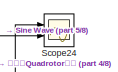
[diagram: root canvas - part 1/8, top center region]
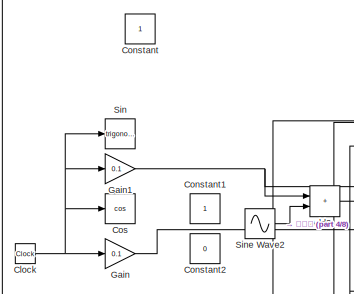
[diagram: root canvas - part 2/8, top left region]
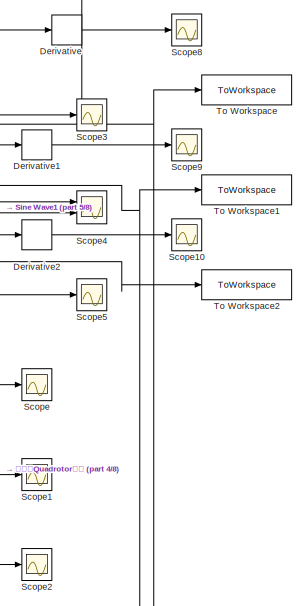
[diagram: root canvas - part 3/8, top right region]
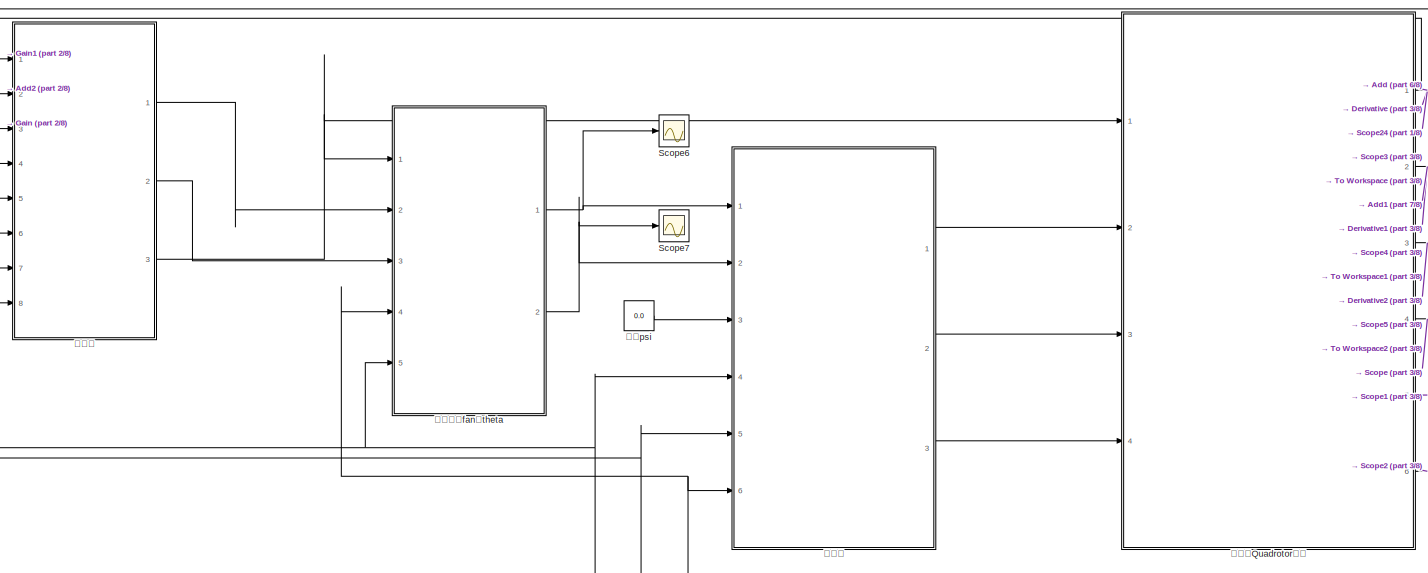
[diagram: root canvas - part 4/8, top center region]
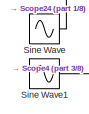
[diagram: root canvas - part 5/8, middle left region]
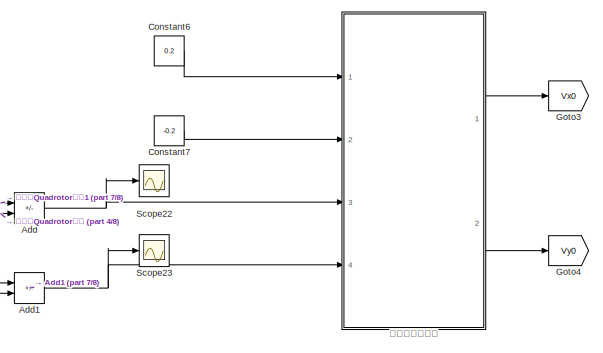
[diagram: root canvas - part 6/8, middle right region]
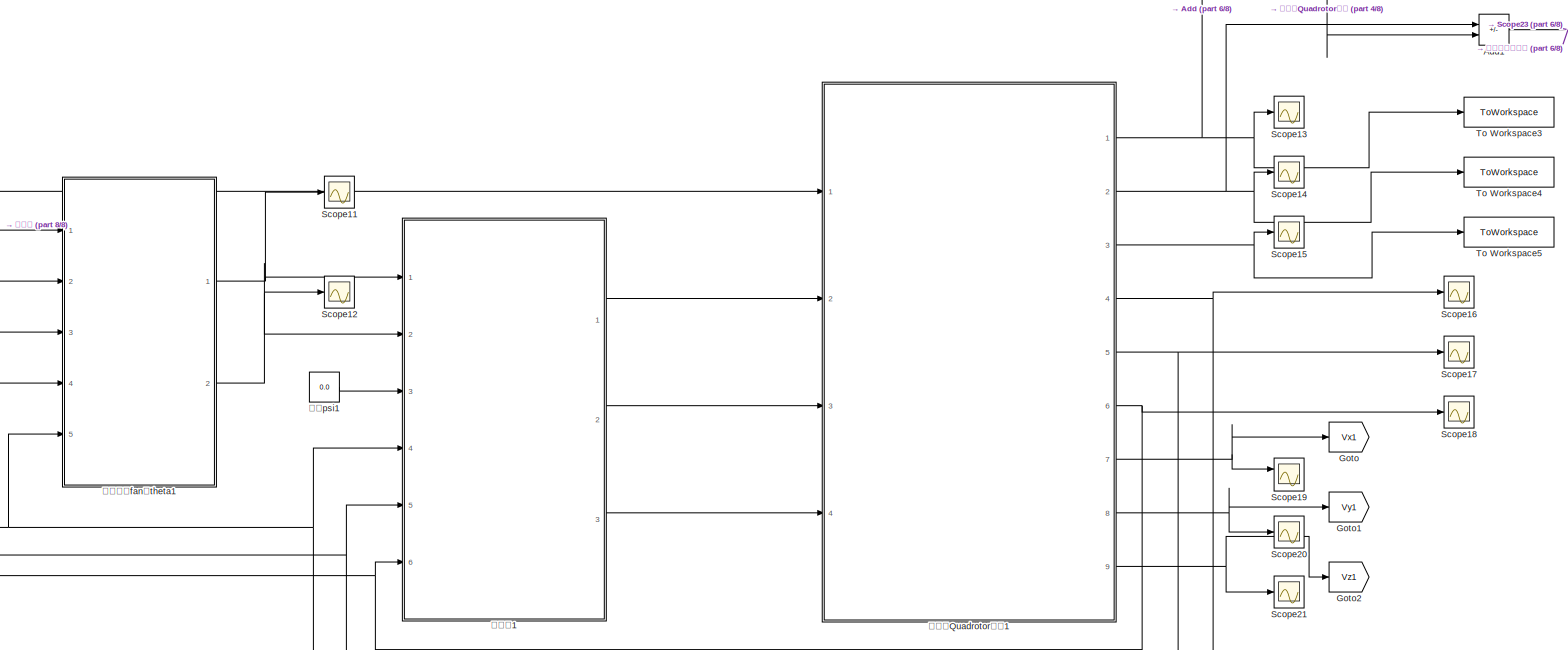
[diagram: root canvas - part 7/8, bottom center region]
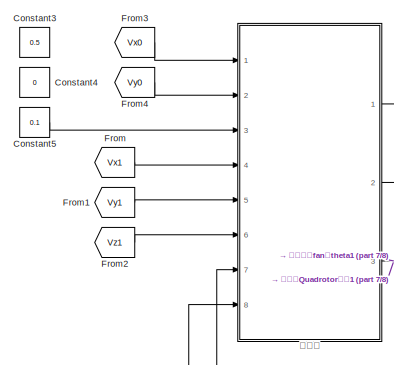
[diagram: root canvas - part 8/8, bottom left region]
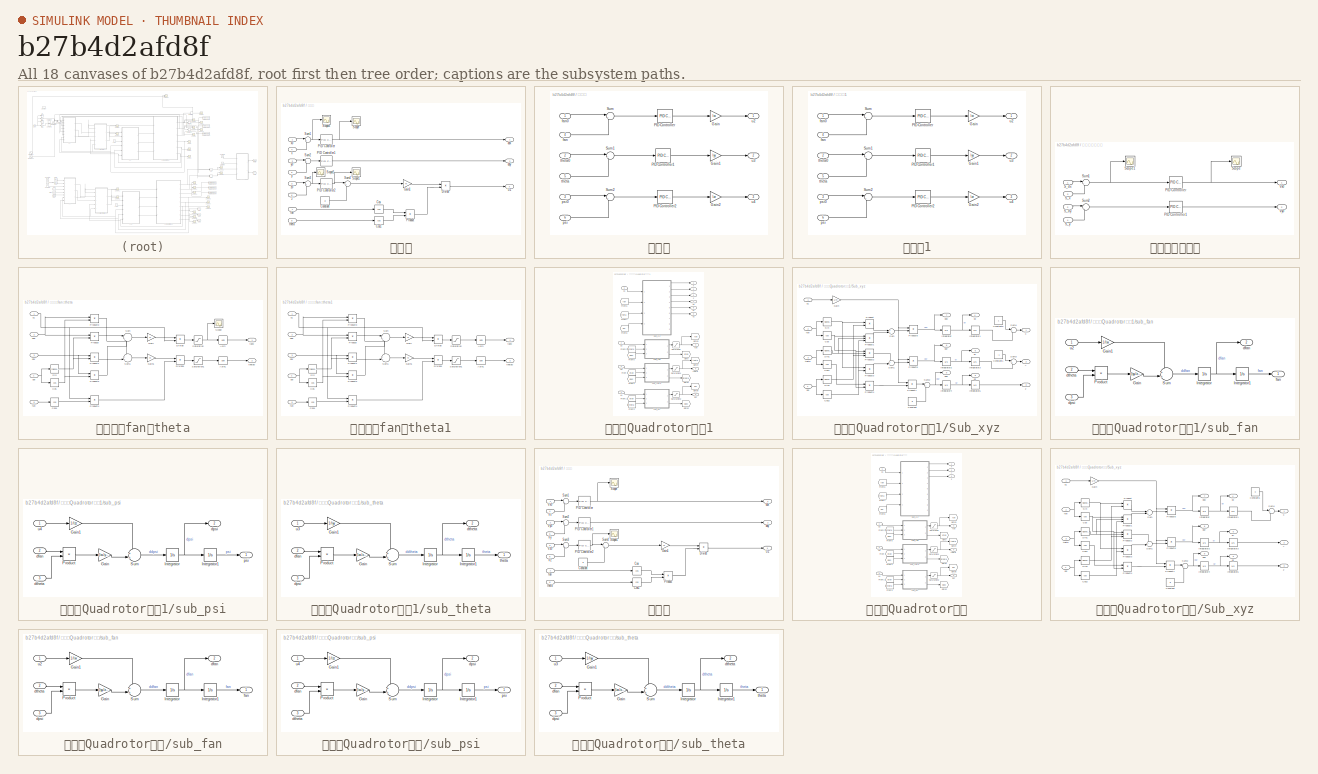
[diagram: thumbnail index - all 18 canvases of the model, root first then tree order]
MODEL slx_b27b4d2afd8f
KIND model
CONFIG AbsTol = auto
CONFIG EnableMultiTasking = off
CONFIG FixedStep = 0.001
CONFIG MaxStep = auto
CONFIG MinStep = auto
CONFIG RelTol = 1e-3
CONFIG SampleTimeConstraint = Unconstrained
CONFIG SolverName = FixedStepAuto
CONFIG StartTime = 0.0
CONFIG StopTime = 240
BLOCK [Sum] Add
  IconShape = rectangular
  Inputs = +-
  Ports = [2, 1]
BLOCK [Sum] Add1
  IconShape = rectangular
  Inputs = +-
  Ports = [2, 1]
BLOCK [Sum] Add2
  IconShape = rectangular
  Ports = [2, 1]
BLOCK [Clock] Clock
BLOCK [Constant] Constant
BLOCK [Constant] Constant1
BLOCK [Constant] Constant2
  Value = 0
BLOCK [Constant] Constant3
  Value = 0.5
BLOCK [Constant] Constant4
  Value = 0
BLOCK [Constant] Constant5
  Value = 0.1
BLOCK [Constant] Constant6
  Value = 0.2
BLOCK [Constant] Constant7
  Value = -0.2
BLOCK [Trigonometry] Cos
  Operator = cos
  Ports = [1, 1]
BLOCK [Derivative] Derivative
BLOCK [Derivative] Derivative1
BLOCK [Derivative] Derivative2
BLOCK [From] From
  GotoTag = Vx1
BLOCK [From] From1
  GotoTag = Vy1
BLOCK [From] From2
  GotoTag = Vz1
BLOCK [From] From3
  GotoTag = Vx0
BLOCK [From] From4
  GotoTag = Vy0
BLOCK [Gain] Gain
  Gain = 0.1
BLOCK [Gain] Gain1
  Gain = 0.1
BLOCK [Goto] Goto
  GotoTag = Vx1
BLOCK [Goto] Goto1
  GotoTag = Vy1
BLOCK [Goto] Goto2
  GotoTag = Vz1
BLOCK [Goto] Goto3
  GotoTag = Vx0
BLOCK [Goto] Goto4
  GotoTag = Vy0
BLOCK [Scope] Scope
  Floating = off
  NumInputPorts = 1
  Ports = [1]
  ScopeSpecificationString = Simulink.scopes.TimeScopeBlockCfg('CurrentConfiguration', extmgr.ConfigurationSet(extmgr.Configuration('Core','General UI',true),extmgr.Configuration('Core','Source UI',true),extmgr.Configuration('Sources','WiredSimulink',true),extmgr.Configuration('Visuals','Time Domain',true,'SerializedDisplays',{struct('MinYLimReal','-1.06962','MaxYLimReal','0.30362','YLabelReal','','MinYLimMag','0.00000','MaxY...<+1391ch>
BLOCK [Scope] Scope1
  Floating = off
  NumInputPorts = 1
  Ports = [1]
  ScopeSpecificationString = Simulink.scopes.TimeScopeBlockCfg('CurrentConfiguration', extmgr.ConfigurationSet(extmgr.Configuration('Core','General UI',true),extmgr.Configuration('Core','Source UI',true),extmgr.Configuration('Sources','WiredSimulink',true,'DataLoggingVariableName','ScopeData1'),extmgr.Configuration('Visuals','Time Domain',true,'SerializedDisplays',{struct('MinYLimReal','-1.48799','MaxYLimReal','0.68194','YLab...<+1430ch>
BLOCK [Scope] Scope10
  Floating = off
  NumInputPorts = 1
  Ports = [1]
  ScopeSpecificationString = Simulink.scopes.TimeScopeBlockCfg('CurrentConfiguration', extmgr.ConfigurationSet(extmgr.Configuration('Core','General UI',true),extmgr.Configuration('Core','Source UI',true),extmgr.Configuration('Sources','WiredSimulink',true,'DataLoggingVariableName','ScopeData3'),extmgr.Configuration('Visuals','Time Domain',true,'SerializedDisplays',{struct('MinYLimReal','-0.01477','MaxYLimReal','0.13295','YLab...<+1525ch>
BLOCK [Scope] Scope11
  Floating = off
  NumInputPorts = 1
  Ports = [1]
  ScopeSpecificationString = Simulink.scopes.TimeScopeBlockCfg('CurrentConfiguration', extmgr.ConfigurationSet(extmgr.Configuration('Core','General UI',true),extmgr.Configuration('Core','Source UI',true),extmgr.Configuration('Sources','WiredSimulink',true,'DataLoggingVariableName','ScopeData4'),extmgr.Configuration('Visuals','Time Domain',true,'SerializedDisplays',{struct('MinYLimReal','-1.00000','MaxYLimReal','1.00000','YLab...<+1428ch>
BLOCK [Scope] Scope12
  Floating = off
  NumInputPorts = 1
  Ports = [1]
  ScopeSpecificationString = Simulink.scopes.TimeScopeBlockCfg('CurrentConfiguration', extmgr.ConfigurationSet(extmgr.Configuration('Core','General UI',true),extmgr.Configuration('Core','Source UI',true),extmgr.Configuration('Sources','WiredSimulink',true,'DataLoggingVariableName','ScopeData5'),extmgr.Configuration('Visuals','Time Domain',true,'SerializedDisplays',{struct('MinYLimReal','-1.00000','MaxYLimReal','1.00000','YLab...<+1428ch>
BLOCK [Scope] Scope13
  Floating = off
  NumInputPorts = 1
  Ports = [1]
  ScopeSpecificationString = Simulink.scopes.TimeScopeBlockCfg('CurrentConfiguration', extmgr.ConfigurationSet(extmgr.Configuration('Core','General UI',true),extmgr.Configuration('Core','Source UI',true),extmgr.Configuration('Sources','WiredSimulink',true,'DataLoggingVariableName','ScopeData6'),extmgr.Configuration('Visuals','Time Domain',true,'SerializedDisplays',{struct('MinYLimReal','-0.90912','MaxYLimReal','13.65286','YLa...<+1579ch>
BLOCK [Scope] Scope14
  Floating = off
  NumInputPorts = 1
  Ports = [1]
  ScopeSpecificationString = Simulink.scopes.TimeScopeBlockCfg('CurrentConfiguration', extmgr.ConfigurationSet(extmgr.Configuration('Core','General UI',true),extmgr.Configuration('Core','Source UI',true),extmgr.Configuration('Sources','WiredSimulink',true,'DataLoggingVariableName','ScopeData7'),extmgr.Configuration('Visuals','Time Domain',true,'SerializedDisplays',{struct('MinYLimReal','-4.04557','MaxYLimReal','26.41017','YLa...<+1535ch>
BLOCK [Scope] Scope15
  Floating = off
  NumInputPorts = 1
  Ports = [1]
  ScopeSpecificationString = Simulink.scopes.TimeScopeBlockCfg('CurrentConfiguration', extmgr.ConfigurationSet(extmgr.Configuration('Core','General UI',true),extmgr.Configuration('Core','Source UI',true),extmgr.Configuration('Sources','WiredSimulink',true,'DataLoggingVariableName','ScopeData8'),extmgr.Configuration('Visuals','Time Domain',true,'SerializedDisplays',{struct('MinYLimReal','-0.625','MaxYLimReal','5.625','YLabelRe...<+1519ch>
BLOCK [Scope] Scope16
  Floating = off
  NumInputPorts = 1
  Ports = [1]
  ScopeSpecificationString = Simulink.scopes.TimeScopeBlockCfg('CurrentConfiguration', extmgr.ConfigurationSet(extmgr.Configuration('Core','General UI',true),extmgr.Configuration('Core','Source UI',true),extmgr.Configuration('Sources','WiredSimulink',true,'DataLoggingVariableName','ScopeData9'),extmgr.Configuration('Visuals','Time Domain',true,'SerializedDisplays',{struct('MinYLimReal','-0.63474','MaxYLimReal','0.34736','YLab...<+1531ch>
BLOCK [Scope] Scope17
  Floating = off
  NumInputPorts = 1
  Ports = [1]
  ScopeSpecificationString = Simulink.scopes.TimeScopeBlockCfg('CurrentConfiguration', extmgr.ConfigurationSet(extmgr.Configuration('Core','General UI',true),extmgr.Configuration('Core','Source UI',true),extmgr.Configuration('Sources','WiredSimulink',true,'DataLoggingVariableName','ScopeData10'),extmgr.Configuration('Visuals','Time Domain',true,'SerializedDisplays',{struct('MinYLimReal','-0.03105','MaxYLimReal','0.14528','YLa...<+1532ch>
BLOCK [Scope] Scope18
  Floating = off
  NumInputPorts = 1
  Ports = [1]
  ScopeSpecificationString = Simulink.scopes.TimeScopeBlockCfg('CurrentConfiguration', extmgr.ConfigurationSet(extmgr.Configuration('Core','General UI',true),extmgr.Configuration('Core','Source UI',true),extmgr.Configuration('Sources','WiredSimulink',true,'DataLoggingVariableName','ScopeData11'),extmgr.Configuration('Visuals','Time Domain',true,'SerializedDisplays',{struct('MinYLimReal','-1.00000','MaxYLimReal','1.00000','YLa...<+1530ch>
BLOCK [Scope] Scope19
  Floating = off
  NumInputPorts = 2
  Ports = [2]
  ScopeSpecificationString = Simulink.scopes.TimeScopeBlockCfg('CurrentConfiguration', extmgr.ConfigurationSet(extmgr.Configuration('Core','General UI',true),extmgr.Configuration('Core','Source UI',true),extmgr.Configuration('Sources','WiredSimulink',true,'DataLoggingVariableName','ScopeData12'),extmgr.Configuration('Visuals','Time Domain',true,'SerializedDisplays',{struct('MinYLimReal','-0.60344','MaxYLimReal','0.17818','YLa...<+1515ch>
BLOCK [Scope] Scope2
  Floating = off
  NumInputPorts = 1
  Ports = [1]
  ScopeSpecificationString = Simulink.scopes.TimeScopeBlockCfg('CurrentConfiguration', extmgr.ConfigurationSet(extmgr.Configuration('Core','General UI',true),extmgr.Configuration('Core','Source UI',true),extmgr.Configuration('Sources','WiredSimulink',true,'DataLoggingVariableName','ScopeData2'),extmgr.Configuration('Visuals','Time Domain',true,'SerializedDisplays',{struct('MinYLimReal','-1.00000','MaxYLimReal','1.00000','YLab...<+1430ch>
BLOCK [Scope] Scope20
  Floating = off
  NumInputPorts = 1
  Ports = [1]
  ScopeSpecificationString = Simulink.scopes.TimeScopeBlockCfg('CurrentConfiguration', extmgr.ConfigurationSet(extmgr.Configuration('Core','General UI',true),extmgr.Configuration('Core','Source UI',true),extmgr.Configuration('Sources','WiredSimulink',true,'DataLoggingVariableName','ScopeData13'),extmgr.Configuration('Visuals','Time Domain',true,'SerializedDisplays',{struct('MinYLimReal','-0.03347','MaxYLimReal','0.30123','YLa...<+1533ch>
BLOCK [Scope] Scope21
  Floating = off
  NumInputPorts = 1
  Ports = [1]
  ScopeSpecificationString = Simulink.scopes.TimeScopeBlockCfg('CurrentConfiguration', extmgr.ConfigurationSet(extmgr.Configuration('Core','General UI',true),extmgr.Configuration('Core','Source UI',true),extmgr.Configuration('Sources','WiredSimulink',true,'DataLoggingVariableName','ScopeData14'),extmgr.Configuration('Visuals','Time Domain',true,'SerializedDisplays',{struct('MinYLimReal','-0.01283','MaxYLimReal','0.11545','YLa...<+1533ch>
BLOCK [Scope] Scope22
  Floating = off
  NumInputPorts = 1
  Ports = [1]
  ScopeSpecificationString = Simulink.scopes.TimeScopeBlockCfg('CurrentConfiguration', extmgr.ConfigurationSet(extmgr.Configuration('Core','General UI',true),extmgr.Configuration('Core','Source UI',true),extmgr.Configuration('Sources','WiredSimulink',true,'DataLoggingVariableName','ScopeData1'),extmgr.Configuration('Visuals','Time Domain',true,'SerializedDisplays',{struct('MinYLimReal','0.09625','MaxYLimReal','1.10042','YLabe...<+1458ch>
BLOCK [Scope] Scope23
  Floating = off
  NumInputPorts = 1
  Ports = [1]
  ScopeSpecificationString = Simulink.scopes.TimeScopeBlockCfg('CurrentConfiguration', extmgr.ConfigurationSet(extmgr.Configuration('Core','General UI',true),extmgr.Configuration('Core','Source UI',true),extmgr.Configuration('Sources','WiredSimulink',true,'DataLoggingVariableName','ScopeData2'),extmgr.Configuration('Visuals','Time Domain',true,'SerializedDisplays',{struct('MinYLimReal','-1.10066','MaxYLimReal','-0.09409','YLa...<+1463ch>
BLOCK [Scope] Scope24
  Floating = off
  NumInputPorts = 2
  Ports = [2]
  ScopeSpecificationString = Simulink.scopes.TimeScopeBlockCfg('CurrentConfiguration', extmgr.ConfigurationSet(extmgr.Configuration('Core','General UI',true),extmgr.Configuration('Core','Source UI',true),extmgr.Configuration('Sources','WiredSimulink',true,'DataLoggingVariableName','ScopeData1'),extmgr.Configuration('Visuals','Time Domain',true,'SerializedDisplays',{struct('MinYLimReal','-4.12471','MaxYLimReal','27.12238','YLa...<+1445ch>
BLOCK [Scope] Scope3
  Floating = off
  NumInputPorts = 1
  Ports = [1]
  ScopeSpecificationString = Simulink.scopes.TimeScopeBlockCfg('CurrentConfiguration', extmgr.ConfigurationSet(extmgr.Configuration('Core','General UI',true),extmgr.Configuration('Core','Source UI',true),extmgr.Configuration('Sources','WiredSimulink',true,'DataLoggingVariableName','ScopeData1'),extmgr.Configuration('Visuals','Time Domain',true,'SerializedDisplays',{struct('MinYLimReal','-2.99971','MaxYLimReal','26.99738','YLa...<+1534ch>
BLOCK [Scope] Scope4
  Floating = off
  NumInputPorts = 2
  Ports = [2]
  ScopeSpecificationString = Simulink.scopes.TimeScopeBlockCfg('CurrentConfiguration', extmgr.ConfigurationSet(extmgr.Configuration('Core','General UI',true),extmgr.Configuration('Core','Source UI',true),extmgr.Configuration('Sources','WiredSimulink',true,'DataLoggingVariableName','ScopeData2'),extmgr.Configuration('Visuals','Time Domain',true,'SerializedDisplays',{struct('MinYLimReal','-4.07051','MaxYLimReal','26.63462','YLa...<+1547ch>
BLOCK [Scope] Scope5
  Floating = off
  NumInputPorts = 1
  Ports = [1]
  ScopeSpecificationString = Simulink.scopes.TimeScopeBlockCfg('CurrentConfiguration', extmgr.ConfigurationSet(extmgr.Configuration('Core','General UI',true),extmgr.Configuration('Core','Source UI',true),extmgr.Configuration('Sources','WiredSimulink',true,'DataLoggingVariableName','ScopeData3'),extmgr.Configuration('Visuals','Time Domain',true,'SerializedDisplays',{struct('MinYLimReal','-0.625','MaxYLimReal','5.62498','YLabel...<+1520ch>
BLOCK [Scope] Scope6
  Floating = off
  NumInputPorts = 1
  Ports = [1]
  ScopeSpecificationString = Simulink.scopes.TimeScopeBlockCfg('CurrentConfiguration', extmgr.ConfigurationSet(extmgr.Configuration('Core','General UI',true),extmgr.Configuration('Core','Source UI',true),extmgr.Configuration('Sources','WiredSimulink',true,'DataLoggingVariableName','ScopeData1'),extmgr.Configuration('Visuals','Time Domain',true,'SerializedDisplays',{struct('MinYLimReal','-1.00000','MaxYLimReal','1.00000','YLab...<+1428ch>
BLOCK [Scope] Scope7
  Floating = off
  NumInputPorts = 1
  Ports = [1]
  ScopeSpecificationString = Simulink.scopes.TimeScopeBlockCfg('CurrentConfiguration', extmgr.ConfigurationSet(extmgr.Configuration('Core','General UI',true),extmgr.Configuration('Core','Source UI',true),extmgr.Configuration('Sources','WiredSimulink',true,'DataLoggingVariableName','ScopeData2'),extmgr.Configuration('Visuals','Time Domain',true,'SerializedDisplays',{struct('MinYLimReal','-1.00000','MaxYLimReal','1.00000','YLab...<+1399ch>
BLOCK [Scope] Scope8
  Floating = off
  NumInputPorts = 1
  Ports = [1]
  ScopeSpecificationString = Simulink.scopes.TimeScopeBlockCfg('CurrentConfiguration', extmgr.ConfigurationSet(extmgr.Configuration('Core','General UI',true),extmgr.Configuration('Core','Source UI',true),extmgr.Configuration('Sources','WiredSimulink',true,'DataLoggingVariableName','ScopeData1'),extmgr.Configuration('Visuals','Time Domain',true,'SerializedDisplays',{struct('MinYLimReal','-4.91572','MaxYLimReal','0.73801','YLab...<+1523ch>
BLOCK [Scope] Scope9
  Floating = off
  NumInputPorts = 1
  Ports = [1]
  ScopeSpecificationString = Simulink.scopes.TimeScopeBlockCfg('CurrentConfiguration', extmgr.ConfigurationSet(extmgr.Configuration('Core','General UI',true),extmgr.Configuration('Core','Source UI',true),extmgr.Configuration('Sources','WiredSimulink',true,'DataLoggingVariableName','ScopeData2'),extmgr.Configuration('Visuals','Time Domain',true,'SerializedDisplays',{struct('MinYLimReal','-0.16137','MaxYLimReal','1.33343','YLab...<+1524ch>
BLOCK [Trigonometry] Sin
  Ports = [1, 1]
BLOCK [Sin] Sine Wave
  Frequency = 0.2
  Ports = [0, 1]
  SampleTime = 0
BLOCK [Sin] Sine Wave1
  Frequency = 0.2
  Phase = pi/2
  Ports = [0, 1]
  SampleTime = 0
BLOCK [Sin] Sine Wave2
  Amplitude = 2.5
  Frequency = 0.04
  Ports = [0, 1]
  SampleTime = 0
BLOCK [ToWorkspace] To Workspace
  FixptAsFi = on
  MaxDataPoints = inf
  Ports = [1]
  SampleTime = -1
  SaveFormat = Timeseries
  VariableName = L_x
BLOCK [ToWorkspace] To Workspace1
  FixptAsFi = on
  MaxDataPoints = inf
  Ports = [1]
  SampleTime = -1
  SaveFormat = Timeseries
  VariableName = L_y
BLOCK [ToWorkspace] To Workspace2
  FixptAsFi = on
  MaxDataPoints = inf
  Ports = [1]
  SampleTime = -1
  SaveFormat = Timeseries
  VariableName = L_z
BLOCK [ToWorkspace] To Workspace3
  FixptAsFi = on
  MaxDataPoints = inf
  Ports = [1]
  SampleTime = -1
  SaveFormat = Timeseries
  VariableName = F1_x
BLOCK [ToWorkspace] To Workspace4
  FixptAsFi = on
  MaxDataPoints = inf
  Ports = [1]
  SampleTime = -1
  SaveFormat = Timeseries
  VariableName = F1_y
BLOCK [ToWorkspace] To Workspace5
  FixptAsFi = on
  MaxDataPoints = inf
  Ports = [1]
  SampleTime = -1
  SaveFormat = Timeseries
  VariableName = F1_z
BLOCK [SubSystem] 位置环
  Ports = [8, 3]
  RequestExecContextInheritance = off
BLOCK [Constant] 位置环/Constant
  Value = g
BLOCK [Trigonometry] 位置环/Cos
  Operator = cos
  Ports = [1, 1]
BLOCK [Trigonometry] 位置环/Cos1
  Operator = cos
  Ports = [1, 1]
BLOCK [Product] 位置环/Divide
  Inputs = */
  Ports = [2, 1]
BLOCK [Gain] 位置环/Gain1
  Gain = m
BLOCK [Reference] 位置环/PID Controller  REF=slpidlib/PID Controller
  Ports = [1, 1]
  SourceBlock = slpidlib/PID Controller
  SourceProductBaseCode = SL
  SourceType = PID 1dof
BLOCK [Reference] 位置环/PID Controller1  REF=slpidlib/PID Controller
  Ports = [1, 1]
  SourceBlock = slpidlib/PID Controller
  SourceProductBaseCode = SL
  SourceType = PID 1dof
BLOCK [Reference] 位置环/PID Controller2  REF=slpidlib/PID Controller
  Ports = [1, 1]
  SourceBlock = slpidlib/PID Controller
  SourceProductBaseCode = SL
  SourceType = PID 1dof
BLOCK [Product] 位置环/Product
  Ports = [2, 1]
BLOCK [Scope] 位置环/Scope
  Floating = off
  NumInputPorts = 1
  Ports = [1]
  ScopeSpecificationString = Simulink.scopes.TimeScopeBlockCfg('CurrentConfiguration', extmgr.ConfigurationSet(extmgr.Configuration('Core','General UI',true),extmgr.Configuration('Core','Source UI',true),extmgr.Configuration('Sources','WiredSimulink',true,'DataLoggingVariableName','ScopeData2'),extmgr.Configuration('Visuals','Time Domain',true,'SerializedDisplays',{struct('MinYLimReal','-1.00000','MaxYLimReal','1.00000','YLab...<+1373ch>
BLOCK [Scope] 位置环/Scope1
  Floating = off
  NumInputPorts = 1
  Ports = [1]
  ScopeSpecificationString = Simulink.scopes.TimeScopeBlockCfg('CurrentConfiguration', extmgr.ConfigurationSet(extmgr.Configuration('Core','General UI',true),extmgr.Configuration('Core','Source UI',true),extmgr.Configuration('Sources','WiredSimulink',true,'DataLoggingVariableName','ScopeData3'),extmgr.Configuration('Visuals','Time Domain',true,'SerializedDisplays',{struct('MinYLimReal','-62.13653','MaxYLimReal','456.90406','Y...<+1417ch>
BLOCK [Scope] 位置环/Scope2
  Floating = off
  NumInputPorts = 1
  Ports = [1]
  ScopeSpecificationString = Simulink.scopes.TimeScopeBlockCfg('CurrentConfiguration', extmgr.ConfigurationSet(extmgr.Configuration('Core','General UI',true),extmgr.Configuration('Core','Source UI',true),extmgr.Configuration('Sources','WiredSimulink',true,'DataLoggingVariableName','ScopeData4'),extmgr.Configuration('Visuals','Time Domain',true,'SerializedDisplays',{struct('MinYLimReal','-62.13653','MaxYLimReal','456.90406','Y...<+1417ch>
BLOCK [Scope] 位置环/Scope3
  Floating = off
  NumInputPorts = 1
  Ports = [1]
  ScopeSpecificationString = Simulink.scopes.TimeScopeBlockCfg('CurrentConfiguration', extmgr.ConfigurationSet(extmgr.Configuration('Core','General UI',true),extmgr.Configuration('Core','Source UI',true),extmgr.Configuration('Sources','WiredSimulink',true,'DataLoggingVariableName','ScopeData5'),extmgr.Configuration('Visuals','Time Domain',true,'SerializedDisplays',{struct('MinYLimReal','-0.125','MaxYLimReal','1.125','YLabelRe...<+1384ch>
BLOCK [Sum] 位置环/Sum1
  Inputs = |+-
  Ports = [2, 1]
BLOCK [Sum] 位置环/Sum2
  Inputs = |+-
  Ports = [2, 1]
BLOCK [Sum] 位置环/Sum3
  Inputs = |+-
  Ports = [2, 1]
BLOCK [Sum] 位置环/Sum4
  Inputs = |++
  Ports = [2, 1]
BLOCK [Outport] 位置环/U1
  Port = 3
BLOCK [Outport] 位置环/ddx
BLOCK [Outport] 位置环/ddy
  Port = 2
BLOCK [Inport] 位置环/fan
  Port = 7
BLOCK [Inport] 位置环/theta
  Port = 8
BLOCK [Inport] 位置环/x
  Port = 4
BLOCK [Inport] 位置环/x0
BLOCK [Inport] 位置环/y
  Port = 5
BLOCK [Inport] 位置环/y0
  Port = 2
BLOCK [Inport] 位置环/z
  Port = 6
BLOCK [Inport] 位置环/z0
  Port = 3
BLOCK [SubSystem] 姿态环
  Ports = [6, 3]
  RequestExecContextInheritance = off
BLOCK [Gain] 姿态环/Gain
  Gain = Ixx
BLOCK [Gain] 姿态环/Gain1
  Gain = Iyy
BLOCK [Gain] 姿态环/Gain2
  Gain = Izz
BLOCK [Reference] 姿态环/PID Controller  REF=slpidlib/PID Controller
  Ports = [1, 1]
  SourceBlock = slpidlib/PID Controller
  SourceProductBaseCode = SL
  SourceType = PID 1dof
BLOCK [Reference] 姿态环/PID Controller1  REF=slpidlib/PID Controller
  Ports = [1, 1]
  SourceBlock = slpidlib/PID Controller
  SourceProductBaseCode = SL
  SourceType = PID 1dof
BLOCK [Reference] 姿态环/PID Controller2  REF=slpidlib/PID Controller
  Ports = [1, 1]
  SourceBlock = slpidlib/PID Controller
  SourceProductBaseCode = SL
  SourceType = PID 1dof
BLOCK [Sum] 姿态环/Sum
  Inputs = |+-
  Ports = [2, 1]
BLOCK [Sum] 姿态环/Sum1
  Inputs = |+-
  Ports = [2, 1]
BLOCK [Sum] 姿态环/Sum2
  Inputs = |+-
  Ports = [2, 1]
BLOCK [Inport] 姿态环/fan
  Port = 4
BLOCK [Inport] 姿态环/fan0
BLOCK [Inport] 姿态环/psi
  Port = 6
BLOCK [Inport] 姿态环/psi0
  Port = 3
BLOCK [Inport] 姿态环/theta
  Port = 5
BLOCK [Inport] 姿态环/theta0
  Port = 2
BLOCK [Outport] 姿态环/u2
BLOCK [Outport] 姿态环/u3
  Port = 2
BLOCK [Outport] 姿态环/u4
  Port = 3
BLOCK [SubSystem] 姿态环1
  Ports = [6, 3]
  RequestExecContextInheritance = off
BLOCK [Gain] 姿态环1/Gain
  Gain = Ixx
BLOCK [Gain] 姿态环1/Gain1
  Gain = Iyy
BLOCK [Gain] 姿态环1/Gain2
  Gain = Izz
BLOCK [Reference] 姿态环1/PID Controller  REF=slpidlib/PID Controller
  Ports = [1, 1]
  SourceBlock = slpidlib/PID Controller
  SourceProductBaseCode = SL
  SourceType = PID 1dof
BLOCK [Reference] 姿态环1/PID Controller1  REF=slpidlib/PID Controller
  Ports = [1, 1]
  SourceBlock = slpidlib/PID Controller
  SourceProductBaseCode = SL
  SourceType = PID 1dof
BLOCK [Reference] 姿态环1/PID Controller2  REF=slpidlib/PID Controller
  Ports = [1, 1]
  SourceBlock = slpidlib/PID Controller
  SourceProductBaseCode = SL
  SourceType = PID 1dof
BLOCK [Sum] 姿态环1/Sum
  Inputs = |+-
  Ports = [2, 1]
BLOCK [Sum] 姿态环1/Sum1
  Inputs = |+-
  Ports = [2, 1]
BLOCK [Sum] 姿态环1/Sum2
  Inputs = |+-
  Ports = [2, 1]
BLOCK [Inport] 姿态环1/fan
  Port = 4
BLOCK [Inport] 姿态环1/fan0
BLOCK [Inport] 姿态环1/psi
  Port = 6
BLOCK [Inport] 姿态环1/psi0
  Port = 3
BLOCK [Inport] 姿态环1/theta
  Port = 5
BLOCK [Inport] 姿态环1/theta0
  Port = 2
BLOCK [Outport] 姿态环1/u2
BLOCK [Outport] 姿态环1/u3
  Port = 2
BLOCK [Outport] 姿态环1/u4
  Port = 3
BLOCK [Constant] 期望psi
  Value = 0.0
BLOCK [Constant] 期望psi1
  Value = 0.0
BLOCK [SubSystem] 编队协同控制器
  Ports = [4, 2]
  RequestExecContextInheritance = off
BLOCK [Reference] 编队协同控制器/PID Controller  REF=slpidlib/PID Controller
  Ports = [1, 1]
  SourceBlock = slpidlib/PID Controller
  SourceProductBaseCode = SL
  SourceType = PID 1dof
BLOCK [Reference] 编队协同控制器/PID Controller1  REF=slpidlib/PID Controller
  Ports = [1, 1]
  SourceBlock = slpidlib/PID Controller
  SourceProductBaseCode = SL
  SourceType = PID 1dof
BLOCK [Inport] 编队协同控制器/S_dx
BLOCK [Inport] 编队协同控制器/S_dy
  Port = 2
BLOCK [Inport] 编队协同控制器/S_x
  Port = 3
BLOCK [Inport] 编队协同控制器/S_y
  Port = 4
BLOCK [Scope] 编队协同控制器/Scope
  Floating = off
  NumInputPorts = 1
  Ports = [1]
  ScopeSpecificationString = Simulink.scopes.TimeScopeBlockCfg('CurrentConfiguration', extmgr.ConfigurationSet(extmgr.Configuration('Core','General UI',true),extmgr.Configuration('Core','Source UI',true),extmgr.Configuration('Sources','WiredSimulink',true,'DataLoggingVariableName','ScopeData2'),extmgr.Configuration('Visuals','Time Domain',true,'SerializedDisplays',{struct('MinYLimReal','-27.0125','MaxYLimReal','3.1125','YLabe...<+1371ch>
BLOCK [Scope] 编队协同控制器/Scope1
  Floating = off
  NumInputPorts = 1
  Ports = [1]
  ScopeSpecificationString = Simulink.scopes.TimeScopeBlockCfg('CurrentConfiguration', extmgr.ConfigurationSet(extmgr.Configuration('Core','General UI',true),extmgr.Configuration('Core','Source UI',true),extmgr.Configuration('Sources','WiredSimulink',true,'DataLoggingVariableName','ScopeData3'),extmgr.Configuration('Visuals','Time Domain',true,'SerializedDisplays',{struct('MinYLimReal','-0.04256','MaxYLimReal','0.38308','YLab...<+1363ch>
BLOCK [Sum] 编队协同控制器/Sum1
  Inputs = |+-
  Ports = [2, 1]
BLOCK [Sum] 编队协同控制器/Sum2
  Inputs = |+-
  Ports = [2, 1]
BLOCK [Outport] 编队协同控制器/Vx0
BLOCK [Outport] 编队协同控制器/Vy0
  Port = 2
BLOCK [SubSystem] 计算期望fan与theta
  Ports = [5, 2]
  RequestExecContextInheritance = off
BLOCK [Trigonometry] 计算期望fan与theta/Asin
  Operator = asin
  Ports = [1, 1]
BLOCK [Trigonometry] 计算期望fan与theta/Asin1
  Operator = asin
  Ports = [1, 1]
BLOCK [Trigonometry] 计算期望fan与theta/Cos
  Operator = cos
  Ports = [1, 1]
BLOCK [Trigonometry] 计算期望fan与theta/Cos1
  Operator = cos
  Ports = [1, 1]
BLOCK [Product] 计算期望fan与theta/Divide
  Inputs = */
  Ports = [2, 1]
BLOCK [Product] 计算期望fan与theta/Divide1
  Inputs = */
  Ports = [2, 1]
BLOCK [Gain] 计算期望fan与theta/Gain
  Gain = m
BLOCK [Gain] 计算期望fan与theta/Gain1
  Gain = m
BLOCK [Product] 计算期望fan与theta/Product
  Ports = [2, 1]
BLOCK [Product] 计算期望fan与theta/Product1
  Ports = [2, 1]
BLOCK [Product] 计算期望fan与theta/Product2
  Ports = [2, 1]
BLOCK [Product] 计算期望fan与theta/Product3
  Ports = [2, 1]
BLOCK [Product] 计算期望fan与theta/Product4
  Ports = [2, 1]
BLOCK [Saturate] 计算期望fan与theta/Saturation
  LowerLimit = -0.9
  UpperLimit = 0.9
BLOCK [Saturate] 计算期望fan与theta/Saturation1
  LowerLimit = -0.9
  UpperLimit = 0.9
BLOCK [Scope] 计算期望fan与theta/Scope
  Floating = off
  NumInputPorts = 1
  Ports = [1]
  ScopeSpecificationString = Simulink.scopes.TimeScopeBlockCfg('CurrentConfiguration', extmgr.ConfigurationSet(extmgr.Configuration('Core','General UI',true),extmgr.Configuration('Core','Source UI',true),extmgr.Configuration('Sources','WiredSimulink',true,'DataLoggingVariableName','ScopeData6'),extmgr.Configuration('Visuals','Time Domain',true,'SerializedDisplays',{struct('MinYLimReal','-0.15728','MaxYLimReal','0.06613','YLab...<+1369ch>
BLOCK [Trigonometry] 计算期望fan与theta/Sin
  Ports = [1, 1]
BLOCK [Sum] 计算期望fan与theta/Sum
  Inputs = |+-
  Ports = [2, 1]
BLOCK [Sum] 计算期望fan与theta/Sum1
  Inputs = ++|
  Ports = [2, 1]
BLOCK [Inport] 计算期望fan与theta/ddx
  Port = 2
BLOCK [Inport] 计算期望fan与theta/ddy
  Port = 3
BLOCK [Inport] 计算期望fan与theta/fan
  Port = 5
BLOCK [Outport] 计算期望fan与theta/fan0
BLOCK [Inport] 计算期望fan与theta/psi
  Port = 4
BLOCK [Outport] 计算期望fan与theta/theta0
  Port = 2
BLOCK [Inport] 计算期望fan与theta/u1
BLOCK [SubSystem] 计算期望fan与theta1
  Ports = [5, 2]
  RequestExecContextInheritance = off
BLOCK [Trigonometry] 计算期望fan与theta1/Asin
  Operator = asin
  Ports = [1, 1]
BLOCK [Trigonometry] 计算期望fan与theta1/Asin1
  Operator = asin
  Ports = [1, 1]
BLOCK [Trigonometry] 计算期望fan与theta1/Cos
  Operator = cos
  Ports = [1, 1]
BLOCK [Trigonometry] 计算期望fan与theta1/Cos1
  Operator = cos
  Ports = [1, 1]
BLOCK [Product] 计算期望fan与theta1/Divide
  Inputs = */
  Ports = [2, 1]
BLOCK [Product] 计算期望fan与theta1/Divide1
  Inputs = */
  Ports = [2, 1]
BLOCK [Gain] 计算期望fan与theta1/Gain
  Gain = m
BLOCK [Gain] 计算期望fan与theta1/Gain1
  Gain = m
BLOCK [Product] 计算期望fan与theta1/Product
  Ports = [2, 1]
BLOCK [Product] 计算期望fan与theta1/Product1
  Ports = [2, 1]
BLOCK [Product] 计算期望fan与theta1/Product2
  Ports = [2, 1]
BLOCK [Product] 计算期望fan与theta1/Product3
  Ports = [2, 1]
BLOCK [Product] 计算期望fan与theta1/Product4
  Ports = [2, 1]
BLOCK [Saturate] 计算期望fan与theta1/Saturation
  LowerLimit = -0.9
  UpperLimit = 0.9
BLOCK [Saturate] 计算期望fan与theta1/Saturation1
  LowerLimit = -0.9
  UpperLimit = 0.9
BLOCK [Trigonometry] 计算期望fan与theta1/Sin
  Ports = [1, 1]
BLOCK [Sum] 计算期望fan与theta1/Sum
  Inputs = |+-
  Ports = [2, 1]
BLOCK [Sum] 计算期望fan与theta1/Sum1
  Inputs = ++|
  Ports = [2, 1]
BLOCK [Inport] 计算期望fan与theta1/ddx
  Port = 2
BLOCK [Inport] 计算期望fan与theta1/ddy
  Port = 3
BLOCK [Inport] 计算期望fan与theta1/fan
  Port = 5
BLOCK [Outport] 计算期望fan与theta1/fan0
BLOCK [Inport] 计算期望fan与theta1/psi
  Port = 4
BLOCK [Outport] 计算期望fan与theta1/theta0
  Port = 2
BLOCK [Inport] 计算期望fan与theta1/u1
BLOCK [SubSystem] 跟随者Quadrotor模型1
  Ports = [4, 9]
  RequestExecContextInheritance = off
BLOCK [From] 跟随者Quadrotor模型1/From
  GotoTag = dfan
BLOCK [From] 跟随者Quadrotor模型1/From1
  GotoTag = dfan
BLOCK [From] 跟随者Quadrotor模型1/From2
  GotoTag = dtheta
BLOCK [From] 跟随者Quadrotor模型1/From3
  GotoTag = dtheta
BLOCK [From] 跟随者Quadrotor模型1/From4
  GotoTag = dpsi
BLOCK [From] 跟随者Quadrotor模型1/From5
  GotoTag = dpsi
BLOCK [From] 跟随者Quadrotor模型1/From6
  GotoTag = fan
BLOCK [From] 跟随者Quadrotor模型1/From7
  GotoTag = theta
BLOCK [From] 跟随者Quadrotor模型1/From8
  GotoTag = psi
BLOCK [Goto] 跟随者Quadrotor模型1/Goto
  GotoTag = dfan
BLOCK [Goto] 跟随者Quadrotor模型1/Goto1
  GotoTag = dtheta
BLOCK [Goto] 跟随者Quadrotor模型1/Goto2
  GotoTag = dpsi
BLOCK [Goto] 跟随者Quadrotor模型1/Goto3
  GotoTag = fan
BLOCK [Goto] 跟随者Quadrotor模型1/Goto4
  GotoTag = theta
BLOCK [Goto] 跟随者Quadrotor模型1/Goto5
  GotoTag = psi
BLOCK [Saturate] 跟随者Quadrotor模型1/Saturation
  LowerLimit = -inf
  UpperLimit = inf
BLOCK [Saturate] 跟随者Quadrotor模型1/Saturation1
  LowerLimit = -pi/2
  UpperLimit = pi/2
BLOCK [Saturate] 跟随者Quadrotor模型1/Saturation2
  LowerLimit = -pi
  UpperLimit = pi
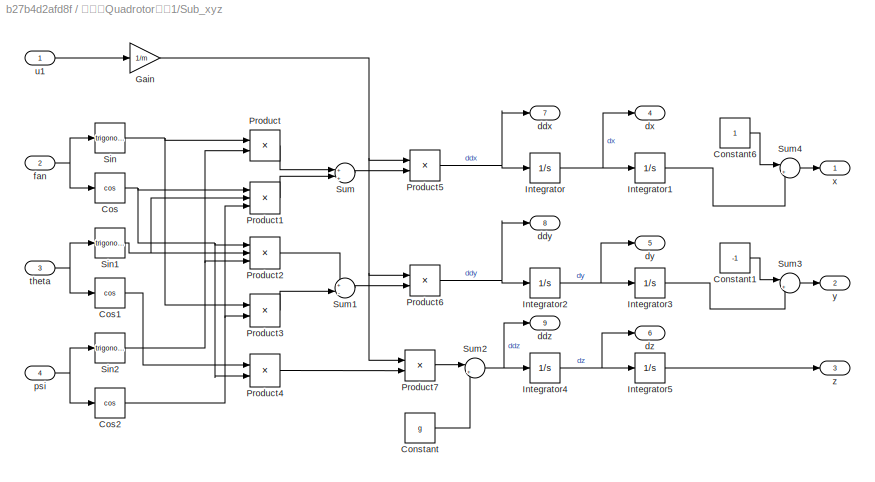
BLOCK [SubSystem] 跟随者Quadrotor模型1/Sub_xyz
  Ports = [4, 9]
  RequestExecContextInheritance = off
BLOCK [Constant] 跟随者Quadrotor模型1/Sub_xyz/Constant
  Value = g
BLOCK [Constant] 跟随者Quadrotor模型1/Sub_xyz/Constant1
  Value = -1
BLOCK [Constant] 跟随者Quadrotor模型1/Sub_xyz/Constant6
BLOCK [Trigonometry] 跟随者Quadrotor模型1/Sub_xyz/Cos
  Operator = cos
  Ports = [1, 1]
BLOCK [Trigonometry] 跟随者Quadrotor模型1/Sub_xyz/Cos1
  Operator = cos
  Ports = [1, 1]
BLOCK [Trigonometry] 跟随者Quadrotor模型1/Sub_xyz/Cos2
  Operator = cos
  Ports = [1, 1]
BLOCK [Gain] 跟随者Quadrotor模型1/Sub_xyz/Gain
  Gain = 1/m
BLOCK [Integrator] 跟随者Quadrotor模型1/Sub_xyz/Integrator
  Ports = [1, 1]
BLOCK [Integrator] 跟随者Quadrotor模型1/Sub_xyz/Integrator1
  Ports = [1, 1]
BLOCK [Integrator] 跟随者Quadrotor模型1/Sub_xyz/Integrator2
  Ports = [1, 1]
BLOCK [Integrator] 跟随者Quadrotor模型1/Sub_xyz/Integrator3
  Ports = [1, 1]
BLOCK [Integrator] 跟随者Quadrotor模型1/Sub_xyz/Integrator4
  Ports = [1, 1]
BLOCK [Integrator] 跟随者Quadrotor模型1/Sub_xyz/Integrator5
  Ports = [1, 1]
BLOCK [Product] 跟随者Quadrotor模型1/Sub_xyz/Product
  Ports = [2, 1]
BLOCK [Product] 跟随者Quadrotor模型1/Sub_xyz/Product1
  Inputs = 3
  Ports = [3, 1]
BLOCK [Product] 跟随者Quadrotor模型1/Sub_xyz/Product2
  Inputs = 3
  Ports = [3, 1]
BLOCK [Product] 跟随者Quadrotor模型1/Sub_xyz/Product3
  Ports = [2, 1]
BLOCK [Product] 跟随者Quadrotor模型1/Sub_xyz/Product4
  Ports = [2, 1]
BLOCK [Product] 跟随者Quadrotor模型1/Sub_xyz/Product5
  Ports = [2, 1]
BLOCK [Product] 跟随者Quadrotor模型1/Sub_xyz/Product6
  Ports = [2, 1]
BLOCK [Product] 跟随者Quadrotor模型1/Sub_xyz/Product7
  Ports = [2, 1]
BLOCK [Trigonometry] 跟随者Quadrotor模型1/Sub_xyz/Sin
  Ports = [1, 1]
BLOCK [Trigonometry] 跟随者Quadrotor模型1/Sub_xyz/Sin1
  Ports = [1, 1]
BLOCK [Trigonometry] 跟随者Quadrotor模型1/Sub_xyz/Sin2
  Ports = [1, 1]
BLOCK [Sum] 跟随者Quadrotor模型1/Sub_xyz/Sum
  Inputs = +|+
  Ports = [2, 1]
BLOCK [Sum] 跟随者Quadrotor模型1/Sub_xyz/Sum1
  Inputs = +|-
  Ports = [2, 1]
BLOCK [Sum] 跟随者Quadrotor模型1/Sub_xyz/Sum2
  Inputs = |+-
  Ports = [2, 1]
BLOCK [Sum] 跟随者Quadrotor模型1/Sub_xyz/Sum3
  Inputs = |++
  Ports = [2, 1]
BLOCK [Sum] 跟随者Quadrotor模型1/Sub_xyz/Sum4
  Inputs = |++
  Ports = [2, 1]
BLOCK [Outport] 跟随者Quadrotor模型1/Sub_xyz/ddx
  Port = 7
BLOCK [Outport] 跟随者Quadrotor模型1/Sub_xyz/ddy
  Port = 8
BLOCK [Outport] 跟随者Quadrotor模型1/Sub_xyz/ddz
  Port = 9
BLOCK [Outport] 跟随者Quadrotor模型1/Sub_xyz/dx
  Port = 4
BLOCK [Outport] 跟随者Quadrotor模型1/Sub_xyz/dy
  Port = 5
BLOCK [Outport] 跟随者Quadrotor模型1/Sub_xyz/dz
  Port = 6
BLOCK [Inport] 跟随者Quadrotor模型1/Sub_xyz/fan
  Port = 2
BLOCK [Inport] 跟随者Quadrotor模型1/Sub_xyz/psi
  Port = 4
BLOCK [Inport] 跟随者Quadrotor模型1/Sub_xyz/theta
  Port = 3
BLOCK [Inport] 跟随者Quadrotor模型1/Sub_xyz/u1
BLOCK [Outport] 跟随者Quadrotor模型1/Sub_xyz/x
BLOCK [Outport] 跟随者Quadrotor模型1/Sub_xyz/y
  Port = 2
BLOCK [Outport] 跟随者Quadrotor模型1/Sub_xyz/z
  Port = 3
BLOCK [Outport] 跟随者Quadrotor模型1/Vx
  Port = 7
BLOCK [Outport] 跟随者Quadrotor模型1/Vy
  Port = 8
BLOCK [Outport] 跟随者Quadrotor模型1/Vz
  Port = 9
BLOCK [Outport] 跟随者Quadrotor模型1/fan
  Port = 4
BLOCK [Outport] 跟随者Quadrotor模型1/psi
  Port = 6
BLOCK [SubSystem] 跟随者Quadrotor模型1/sub_fan
  Ports = [3, 2]
  RequestExecContextInheritance = off
BLOCK [Gain] 跟随者Quadrotor模型1/sub_fan/Gain
  Gain = (Iyy-Izz)/Ixx
BLOCK [Gain] 跟随者Quadrotor模型1/sub_fan/Gain1
  Gain = 1/Ixx
BLOCK [Integrator] 跟随者Quadrotor模型1/sub_fan/Integrator
  Ports = [1, 1]
BLOCK [Integrator] 跟随者Quadrotor模型1/sub_fan/Integrator1
  Ports = [1, 1]
BLOCK [Product] 跟随者Quadrotor模型1/sub_fan/Product
  Ports = [2, 1]
BLOCK [Sum] 跟随者Quadrotor模型1/sub_fan/Sum
  Inputs = ++|
  Ports = [2, 1]
BLOCK [Outport] 跟随者Quadrotor模型1/sub_fan/dfan
  Port = 2
BLOCK [Inport] 跟随者Quadrotor模型1/sub_fan/dpsi
  Port = 3
BLOCK [Inport] 跟随者Quadrotor模型1/sub_fan/dtheta
  Port = 2
BLOCK [Outport] 跟随者Quadrotor模型1/sub_fan/fan
BLOCK [Inport] 跟随者Quadrotor模型1/sub_fan/u2
BLOCK [SubSystem] 跟随者Quadrotor模型1/sub_psi
  Ports = [3, 2]
  RequestExecContextInheritance = off
BLOCK [Gain] 跟随者Quadrotor模型1/sub_psi/Gain
  Gain = (Ixx-Iyy)/Izz
BLOCK [Gain] 跟随者Quadrotor模型1/sub_psi/Gain1
  Gain = 1/Izz
BLOCK [Integrator] 跟随者Quadrotor模型1/sub_psi/Integrator
  Ports = [1, 1]
BLOCK [Integrator] 跟随者Quadrotor模型1/sub_psi/Integrator1
  Ports = [1, 1]
BLOCK [Product] 跟随者Quadrotor模型1/sub_psi/Product
  Ports = [2, 1]
BLOCK [Sum] 跟随者Quadrotor模型1/sub_psi/Sum
  Inputs = ++|
  Ports = [2, 1]
BLOCK [Inport] 跟随者Quadrotor模型1/sub_psi/dfan
  Port = 2
BLOCK [Outport] 跟随者Quadrotor模型1/sub_psi/dpsi
  Port = 2
BLOCK [Inport] 跟随者Quadrotor模型1/sub_psi/dtheta
  Port = 3
BLOCK [Outport] 跟随者Quadrotor模型1/sub_psi/psi
BLOCK [Inport] 跟随者Quadrotor模型1/sub_psi/u4
BLOCK [SubSystem] 跟随者Quadrotor模型1/sub_theta
  Ports = [3, 2]
  RequestExecContextInheritance = off
BLOCK [Gain] 跟随者Quadrotor模型1/sub_theta/Gain
  Gain = (Izz-Ixx)/Iyy
BLOCK [Gain] 跟随者Quadrotor模型1/sub_theta/Gain1
  Gain = 1/Iyy
BLOCK [Integrator] 跟随者Quadrotor模型1/sub_theta/Integrator
  Ports = [1, 1]
BLOCK [Integrator] 跟随者Quadrotor模型1/sub_theta/Integrator1
  Ports = [1, 1]
BLOCK [Product] 跟随者Quadrotor模型1/sub_theta/Product
  Ports = [2, 1]
BLOCK [Sum] 跟随者Quadrotor模型1/sub_theta/Sum
  Inputs = ++|
  Ports = [2, 1]
BLOCK [Inport] 跟随者Quadrotor模型1/sub_theta/dfan
  Port = 2
BLOCK [Inport] 跟随者Quadrotor模型1/sub_theta/dpsi
  Port = 3
BLOCK [Outport] 跟随者Quadrotor模型1/sub_theta/dtheta
  Port = 2
BLOCK [Outport] 跟随者Quadrotor模型1/sub_theta/theta
BLOCK [Inport] 跟随者Quadrotor模型1/sub_theta/u3
BLOCK [Outport] 跟随者Quadrotor模型1/theta
  Port = 5
BLOCK [Inport] 跟随者Quadrotor模型1/u1
BLOCK [Inport] 跟随者Quadrotor模型1/u2
  Port = 2
BLOCK [Inport] 跟随者Quadrotor模型1/u3
  Port = 3
BLOCK [Inport] 跟随者Quadrotor模型1/u4
  Port = 4
BLOCK [Outport] 跟随者Quadrotor模型1/x
BLOCK [Outport] 跟随者Quadrotor模型1/y
  Port = 2
BLOCK [Outport] 跟随者Quadrotor模型1/z
  Port = 3
BLOCK [SubSystem] 速度环
  Ports = [8, 3]
  RequestExecContextInheritance = off
BLOCK [Constant] 速度环/Constant
  Value = g
BLOCK [Trigonometry] 速度环/Cos
  Operator = cos
  Ports = [1, 1]
BLOCK [Trigonometry] 速度环/Cos1
  Operator = cos
  Ports = [1, 1]
BLOCK [Product] 速度环/Divide
  Inputs = */
  Ports = [2, 1]
BLOCK [Gain] 速度环/Gain1
  Gain = m
BLOCK [Reference] 速度环/PID Controller  REF=slpidlib/PID Controller
  Ports = [1, 1]
  SourceBlock = slpidlib/PID Controller
  SourceProductBaseCode = SL
  SourceType = PID 1dof
BLOCK [Reference] 速度环/PID Controller1  REF=slpidlib/PID Controller
  Ports = [1, 1]
  SourceBlock = slpidlib/PID Controller
  SourceProductBaseCode = SL
  SourceType = PID 1dof
BLOCK [Reference] 速度环/PID Controller2  REF=slpidlib/PID Controller
  Ports = [1, 1]
  SourceBlock = slpidlib/PID Controller
  SourceProductBaseCode = SL
  SourceType = PID 1dof
BLOCK [Product] 速度环/Product
  Ports = [2, 1]
BLOCK [Scope] 速度环/Scope
  Floating = off
  NumInputPorts = 1
  Ports = [1]
  ScopeSpecificationString = Simulink.scopes.TimeScopeBlockCfg('CurrentConfiguration', extmgr.ConfigurationSet(extmgr.Configuration('Core','General UI',true),extmgr.Configuration('Core','Source UI',true),extmgr.Configuration('Sources','WiredSimulink',true,'DataLoggingVariableName','ScopeData2'),extmgr.Configuration('Visuals','Time Domain',true,'SerializedDisplays',{struct('MinYLimReal','-256383.69525','MaxYLimReal','28506.149...<+1409ch>
BLOCK [Scope] 速度环/Scope1
  Floating = off
  NumInputPorts = 1
  Ports = [1]
  ScopeSpecificationString = Simulink.scopes.TimeScopeBlockCfg('CurrentConfiguration', extmgr.ConfigurationSet(extmgr.Configuration('Core','General UI',true),extmgr.Configuration('Core','Source UI',true),extmgr.Configuration('Sources','WiredSimulink',true,'DataLoggingVariableName','ScopeData3'),extmgr.Configuration('Visuals','Time Domain',true,'SerializedDisplays',{struct('MinYLimReal','-62.13653','MaxYLimReal','456.90406','Y...<+1417ch>
BLOCK [Sum] 速度环/Sum1
  Inputs = |+-
  Ports = [2, 1]
BLOCK [Sum] 速度环/Sum2
  Inputs = |+-
  Ports = [2, 1]
BLOCK [Sum] 速度环/Sum3
  Inputs = |+-
  Ports = [2, 1]
BLOCK [Sum] 速度环/Sum4
  Inputs = |++
  Ports = [2, 1]
BLOCK [Outport] 速度环/U1
  Port = 3
BLOCK [Inport] 速度环/Vx
  Port = 4
BLOCK [Inport] 速度环/Vx0
BLOCK [Inport] 速度环/Vy
  Port = 5
BLOCK [Inport] 速度环/Vy0
  Port = 2
BLOCK [Inport] 速度环/Vz
  Port = 6
BLOCK [Inport] 速度环/Vz0
  Port = 3
BLOCK [Outport] 速度环/ddx
BLOCK [Outport] 速度环/ddy
  Port = 2
BLOCK [Inport] 速度环/fan
  Port = 7
BLOCK [Inport] 速度环/theta
  Port = 8
BLOCK [SubSystem] 领航者Quadrotor模型
  Ports = [4, 6]
  RequestExecContextInheritance = off
BLOCK [From] 领航者Quadrotor模型/From
  GotoTag = dfan
BLOCK [From] 领航者Quadrotor模型/From1
  GotoTag = dfan
BLOCK [From] 领航者Quadrotor模型/From2
  GotoTag = dtheta
BLOCK [From] 领航者Quadrotor模型/From3
  GotoTag = dtheta
BLOCK [From] 领航者Quadrotor模型/From4
  GotoTag = dpsi
BLOCK [From] 领航者Quadrotor模型/From5
  GotoTag = dpsi
BLOCK [From] 领航者Quadrotor模型/From6
  GotoTag = fan
BLOCK [From] 领航者Quadrotor模型/From7
  GotoTag = theta
BLOCK [From] 领航者Quadrotor模型/From8
  GotoTag = psi
BLOCK [Goto] 领航者Quadrotor模型/Goto
  GotoTag = dfan
BLOCK [Goto] 领航者Quadrotor模型/Goto1
  GotoTag = dtheta
BLOCK [Goto] 领航者Quadrotor模型/Goto2
  GotoTag = dpsi
BLOCK [Goto] 领航者Quadrotor模型/Goto3
  GotoTag = fan
BLOCK [Goto] 领航者Quadrotor模型/Goto4
  GotoTag = theta
BLOCK [Goto] 领航者Quadrotor模型/Goto5
  GotoTag = psi
BLOCK [Saturate] 领航者Quadrotor模型/Saturation
  LowerLimit = -inf
  UpperLimit = inf
BLOCK [Saturate] 领航者Quadrotor模型/Saturation1
  LowerLimit = -pi/2
  UpperLimit = pi/2
BLOCK [Saturate] 领航者Quadrotor模型/Saturation2
  LowerLimit = -pi
  UpperLimit = pi
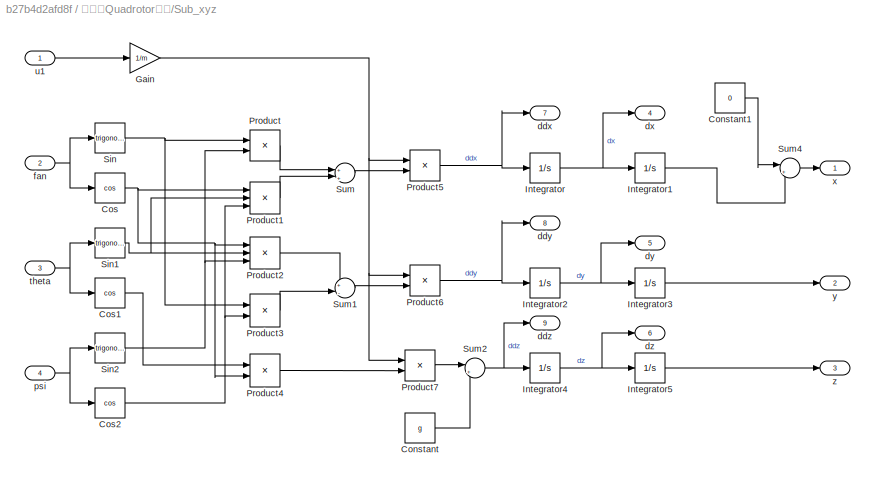
BLOCK [SubSystem] 领航者Quadrotor模型/Sub_xyz
  Ports = [4, 9]
  RequestExecContextInheritance = off
BLOCK [Constant] 领航者Quadrotor模型/Sub_xyz/Constant
  Value = g
BLOCK [Constant] 领航者Quadrotor模型/Sub_xyz/Constant1
  Value = 0
BLOCK [Trigonometry] 领航者Quadrotor模型/Sub_xyz/Cos
  Operator = cos
  Ports = [1, 1]
BLOCK [Trigonometry] 领航者Quadrotor模型/Sub_xyz/Cos1
  Operator = cos
  Ports = [1, 1]
BLOCK [Trigonometry] 领航者Quadrotor模型/Sub_xyz/Cos2
  Operator = cos
  Ports = [1, 1]
BLOCK [Gain] 领航者Quadrotor模型/Sub_xyz/Gain
  Gain = 1/m
BLOCK [Integrator] 领航者Quadrotor模型/Sub_xyz/Integrator
  Ports = [1, 1]
BLOCK [Integrator] 领航者Quadrotor模型/Sub_xyz/Integrator1
  Ports = [1, 1]
BLOCK [Integrator] 领航者Quadrotor模型/Sub_xyz/Integrator2
  Ports = [1, 1]
BLOCK [Integrator] 领航者Quadrotor模型/Sub_xyz/Integrator3
  Ports = [1, 1]
BLOCK [Integrator] 领航者Quadrotor模型/Sub_xyz/Integrator4
  Ports = [1, 1]
BLOCK [Integrator] 领航者Quadrotor模型/Sub_xyz/Integrator5
  Ports = [1, 1]
BLOCK [Product] 领航者Quadrotor模型/Sub_xyz/Product
  Ports = [2, 1]
BLOCK [Product] 领航者Quadrotor模型/Sub_xyz/Product1
  Inputs = 3
  Ports = [3, 1]
BLOCK [Product] 领航者Quadrotor模型/Sub_xyz/Product2
  Inputs = 3
  Ports = [3, 1]
BLOCK [Product] 领航者Quadrotor模型/Sub_xyz/Product3
  Ports = [2, 1]
BLOCK [Product] 领航者Quadrotor模型/Sub_xyz/Product4
  Ports = [2, 1]
BLOCK [Product] 领航者Quadrotor模型/Sub_xyz/Product5
  Ports = [2, 1]
BLOCK [Product] 领航者Quadrotor模型/Sub_xyz/Product6
  Ports = [2, 1]
BLOCK [Product] 领航者Quadrotor模型/Sub_xyz/Product7
  Ports = [2, 1]
BLOCK [Trigonometry] 领航者Quadrotor模型/Sub_xyz/Sin
  Ports = [1, 1]
BLOCK [Trigonometry] 领航者Quadrotor模型/Sub_xyz/Sin1
  Ports = [1, 1]
BLOCK [Trigonometry] 领航者Quadrotor模型/Sub_xyz/Sin2
  Ports = [1, 1]
BLOCK [Sum] 领航者Quadrotor模型/Sub_xyz/Sum
  Inputs = +|+
  Ports = [2, 1]
BLOCK [Sum] 领航者Quadrotor模型/Sub_xyz/Sum1
  Inputs = +|-
  Ports = [2, 1]
BLOCK [Sum] 领航者Quadrotor模型/Sub_xyz/Sum2
  Inputs = |+-
  Ports = [2, 1]
BLOCK [Sum] 领航者Quadrotor模型/Sub_xyz/Sum4
  Inputs = |++
  Ports = [2, 1]
BLOCK [Outport] 领航者Quadrotor模型/Sub_xyz/ddx
  Port = 7
BLOCK [Outport] 领航者Quadrotor模型/Sub_xyz/ddy
  Port = 8
BLOCK [Outport] 领航者Quadrotor模型/Sub_xyz/ddz
  Port = 9
BLOCK [Outport] 领航者Quadrotor模型/Sub_xyz/dx
  Port = 4
BLOCK [Outport] 领航者Quadrotor模型/Sub_xyz/dy
  Port = 5
BLOCK [Outport] 领航者Quadrotor模型/Sub_xyz/dz
  Port = 6
BLOCK [Inport] 领航者Quadrotor模型/Sub_xyz/fan
  Port = 2
BLOCK [Inport] 领航者Quadrotor模型/Sub_xyz/psi
  Port = 4
BLOCK [Inport] 领航者Quadrotor模型/Sub_xyz/theta
  Port = 3
BLOCK [Inport] 领航者Quadrotor模型/Sub_xyz/u1
BLOCK [Outport] 领航者Quadrotor模型/Sub_xyz/x
BLOCK [Outport] 领航者Quadrotor模型/Sub_xyz/y
  Port = 2
BLOCK [Outport] 领航者Quadrotor模型/Sub_xyz/z
  Port = 3
BLOCK [Outport] 领航者Quadrotor模型/fan
  Port = 4
BLOCK [Outport] 领航者Quadrotor模型/psi
  Port = 6
BLOCK [SubSystem] 领航者Quadrotor模型/sub_fan
  Ports = [3, 2]
  RequestExecContextInheritance = off
BLOCK [Gain] 领航者Quadrotor模型/sub_fan/Gain
  Gain = (Iyy-Izz)/Ixx
BLOCK [Gain] 领航者Quadrotor模型/sub_fan/Gain1
  Gain = 1/Ixx
BLOCK [Integrator] 领航者Quadrotor模型/sub_fan/Integrator
  Ports = [1, 1]
BLOCK [Integrator] 领航者Quadrotor模型/sub_fan/Integrator1
  Ports = [1, 1]
BLOCK [Product] 领航者Quadrotor模型/sub_fan/Product
  Ports = [2, 1]
BLOCK [Sum] 领航者Quadrotor模型/sub_fan/Sum
  Inputs = ++|
  Ports = [2, 1]
BLOCK [Outport] 领航者Quadrotor模型/sub_fan/dfan
  Port = 2
BLOCK [Inport] 领航者Quadrotor模型/sub_fan/dpsi
  Port = 3
BLOCK [Inport] 领航者Quadrotor模型/sub_fan/dtheta
  Port = 2
BLOCK [Outport] 领航者Quadrotor模型/sub_fan/fan
BLOCK [Inport] 领航者Quadrotor模型/sub_fan/u2
BLOCK [SubSystem] 领航者Quadrotor模型/sub_psi
  Ports = [3, 2]
  RequestExecContextInheritance = off
BLOCK [Gain] 领航者Quadrotor模型/sub_psi/Gain
  Gain = (Ixx-Iyy)/Izz
BLOCK [Gain] 领航者Quadrotor模型/sub_psi/Gain1
  Gain = 1/Izz
BLOCK [Integrator] 领航者Quadrotor模型/sub_psi/Integrator
  Ports = [1, 1]
BLOCK [Integrator] 领航者Quadrotor模型/sub_psi/Integrator1
  Ports = [1, 1]
BLOCK [Product] 领航者Quadrotor模型/sub_psi/Product
  Ports = [2, 1]
BLOCK [Sum] 领航者Quadrotor模型/sub_psi/Sum
  Inputs = ++|
  Ports = [2, 1]
BLOCK [Inport] 领航者Quadrotor模型/sub_psi/dfan
  Port = 2
BLOCK [Outport] 领航者Quadrotor模型/sub_psi/dpsi
  Port = 2
BLOCK [Inport] 领航者Quadrotor模型/sub_psi/dtheta
  Port = 3
BLOCK [Outport] 领航者Quadrotor模型/sub_psi/psi
BLOCK [Inport] 领航者Quadrotor模型/sub_psi/u4
BLOCK [SubSystem] 领航者Quadrotor模型/sub_theta
  Ports = [3, 2]
  RequestExecContextInheritance = off
BLOCK [Gain] 领航者Quadrotor模型/sub_theta/Gain
  Gain = (Izz-Ixx)/Iyy
BLOCK [Gain] 领航者Quadrotor模型/sub_theta/Gain1
  Gain = 1/Iyy
BLOCK [Integrator] 领航者Quadrotor模型/sub_theta/Integrator
  Ports = [1, 1]
BLOCK [Integrator] 领航者Quadrotor模型/sub_theta/Integrator1
  Ports = [1, 1]
BLOCK [Product] 领航者Quadrotor模型/sub_theta/Product
  Ports = [2, 1]
BLOCK [Sum] 领航者Quadrotor模型/sub_theta/Sum
  Inputs = ++|
  Ports = [2, 1]
BLOCK [Inport] 领航者Quadrotor模型/sub_theta/dfan
  Port = 2
BLOCK [Inport] 领航者Quadrotor模型/sub_theta/dpsi
  Port = 3
BLOCK [Outport] 领航者Quadrotor模型/sub_theta/dtheta
  Port = 2
BLOCK [Outport] 领航者Quadrotor模型/sub_theta/theta
BLOCK [Inport] 领航者Quadrotor模型/sub_theta/u3
BLOCK [Outport] 领航者Quadrotor模型/theta
  Port = 5
BLOCK [Inport] 领航者Quadrotor模型/u1
BLOCK [Inport] 领航者Quadrotor模型/u2
  Port = 2
BLOCK [Inport] 领航者Quadrotor模型/u3
  Port = 3
BLOCK [Inport] 领航者Quadrotor模型/u4
  Port = 4
BLOCK [Outport] 领航者Quadrotor模型/x
BLOCK [Outport] 领航者Quadrotor模型/y
  Port = 2
BLOCK [Outport] 领航者Quadrotor模型/z
  Port = 3
NET Add1:1 -> Scope23:1, 编队协同控制器:4
LINE Add2:1 -> 位置环:2
NET Add:1 -> Scope22:1, 编队协同控制器:3
NET Clock:1 -> Cos:1, Gain1:1, Gain:1, Sin:1
LINE Constant5:1 -> 速度环:3
LINE Constant6:1 -> 编队协同控制器:1
LINE Constant7:1 -> 编队协同控制器:2
LINE Derivative1:1 -> Scope9:1
LINE Derivative2:1 -> Scope10:1
LINE Derivative:1 -> Scope8:1
LINE From1:1 -> 速度环:5
LINE From2:1 -> 速度环:6
LINE From3:1 -> 速度环:1
LINE From4:1 -> 速度环:2
LINE From:1 -> 速度环:4
NET Gain1:1 -> Add2:1, 位置环:1
LINE Gain:1 -> 位置环:3
LINE Sine Wave1:1 -> Scope4:2
LINE Sine Wave2:1 -> Add2:2
LINE Sine Wave:1 -> Scope24:2
LINE 位置环/Constant:1 -> 位置环/Sum4:2
LINE 位置环/Cos1:1 -> 位置环/Product:2
LINE 位置环/Cos:1 -> 位置环/Product:1
LINE 位置环/Divide:1 -> 位置环/U1:1
LINE 位置环/Gain1:1 -> 位置环/Divide:1
LINE 位置环/PID Controller1:1 -> 位置环/ddy:1
NET 位置环/PID Controller2:1 -> 位置环/Scope1:1, 位置环/Sum4:1
NET 位置环/PID Controller:1 -> 位置环/Scope:1, 位置环/ddx:1
LINE 位置环/Product:1 -> 位置环/Divide:2
NET 位置环/Sum1:1 -> 位置环/PID Controller:1, 位置环/Scope3:1
LINE 位置环/Sum2:1 -> 位置环/PID Controller1:1
NET 位置环/Sum3:1 -> 位置环/PID Controller2:1, 位置环/Scope2:1
LINE 位置环/Sum4:1 -> 位置环/Gain1:1
LINE 位置环/fan:1 -> 位置环/Cos:1
LINE 位置环/theta:1 -> 位置环/Cos1:1
LINE 位置环/x0:1 -> 位置环/Sum1:1
LINE 位置环/x:1 -> 位置环/Sum1:2
LINE 位置环/y0:1 -> 位置环/Sum2:1
LINE 位置环/y:1 -> 位置环/Sum2:2
LINE 位置环/z0:1 -> 位置环/Sum3:1
LINE 位置环/z:1 -> 位置环/Sum3:2
LINE 位置环:1 -> 计算期望fan与theta:2
LINE 位置环:2 -> 计算期望fan与theta:3
NET 位置环:3 -> 计算期望fan与theta:1, 领航者Quadrotor模型:1
LINE 姿态环/Gain1:1 -> 姿态环/u3:1
LINE 姿态环/Gain2:1 -> 姿态环/u4:1
LINE 姿态环/Gain:1 -> 姿态环/u2:1
LINE 姿态环/PID Controller1:1 -> 姿态环/Gain1:1
LINE 姿态环/PID Controller2:1 -> 姿态环/Gain2:1
LINE 姿态环/PID Controller:1 -> 姿态环/Gain:1
LINE 姿态环/Sum1:1 -> 姿态环/PID Controller1:1
LINE 姿态环/Sum2:1 -> 姿态环/PID Controller2:1
LINE 姿态环/Sum:1 -> 姿态环/PID Controller:1
LINE 姿态环/fan0:1 -> 姿态环/Sum:1
LINE 姿态环/fan:1 -> 姿态环/Sum:2
LINE 姿态环/psi0:1 -> 姿态环/Sum2:1
LINE 姿态环/psi:1 -> 姿态环/Sum2:2
LINE 姿态环/theta0:1 -> 姿态环/Sum1:1
LINE 姿态环/theta:1 -> 姿态环/Sum1:2
LINE 姿态环1/Gain1:1 -> 姿态环1/u3:1
LINE 姿态环1/Gain2:1 -> 姿态环1/u4:1
LINE 姿态环1/Gain:1 -> 姿态环1/u2:1
LINE 姿态环1/PID Controller1:1 -> 姿态环1/Gain1:1
LINE 姿态环1/PID Controller2:1 -> 姿态环1/Gain2:1
LINE 姿态环1/PID Controller:1 -> 姿态环1/Gain:1
LINE 姿态环1/Sum1:1 -> 姿态环1/PID Controller1:1
LINE 姿态环1/Sum2:1 -> 姿态环1/PID Controller2:1
LINE 姿态环1/Sum:1 -> 姿态环1/PID Controller:1
LINE 姿态环1/fan0:1 -> 姿态环1/Sum:1
LINE 姿态环1/fan:1 -> 姿态环1/Sum:2
LINE 姿态环1/psi0:1 -> 姿态环1/Sum2:1
LINE 姿态环1/psi:1 -> 姿态环1/Sum2:2
LINE 姿态环1/theta0:1 -> 姿态环1/Sum1:1
LINE 姿态环1/theta:1 -> 姿态环1/Sum1:2
LINE 姿态环1:1 -> 跟随者Quadrotor模型1:2
LINE 姿态环1:2 -> 跟随者Quadrotor模型1:3
LINE 姿态环1:3 -> 跟随者Quadrotor模型1:4
LINE 姿态环:1 -> 领航者Quadrotor模型:2
LINE 姿态环:2 -> 领航者Quadrotor模型:3
LINE 姿态环:3 -> 领航者Quadrotor模型:4
LINE 期望psi1:1 -> 姿态环1:3
LINE 期望psi:1 -> 姿态环:3
LINE 编队协同控制器/PID Controller1:1 -> 编队协同控制器/Vy0:1
NET 编队协同控制器/PID Controller:1 -> 编队协同控制器/Scope:1, 编队协同控制器/Vx0:1
LINE 编队协同控制器/S_dx:1 -> 编队协同控制器/Sum1:1
LINE 编队协同控制器/S_dy:1 -> 编队协同控制器/Sum2:1
LINE 编队协同控制器/S_x:1 -> 编队协同控制器/Sum1:2
LINE 编队协同控制器/S_y:1 -> 编队协同控制器/Sum2:2
NET 编队协同控制器/Sum1:1 -> 编队协同控制器/PID Controller:1, 编队协同控制器/Scope1:1
LINE 编队协同控制器/Sum2:1 -> 编队协同控制器/PID Controller1:1
LINE 编队协同控制器:1 -> Goto3:1
LINE 编队协同控制器:2 -> Goto4:1
LINE 计算期望fan与theta/Asin1:1 -> 计算期望fan与theta/theta0:1
LINE 计算期望fan与theta/Asin:1 -> 计算期望fan与theta/fan0:1
LINE 计算期望fan与theta/Cos1:1 -> 计算期望fan与theta/Product4:2
NET 计算期望fan与theta/Cos:1 -> 计算期望fan与theta/Product2:2, 计算期望fan与theta/Product3:2
LINE 计算期望fan与theta/Divide1:1 -> 计算期望fan与theta/Saturation1:1
LINE 计算期望fan与theta/Divide:1 -> 计算期望fan与theta/Saturation:1
LINE 计算期望fan与theta/Gain1:1 -> 计算期望fan与theta/Divide1:1
LINE 计算期望fan与theta/Gain:1 -> 计算期望fan与theta/Divide:1
LINE 计算期望fan与theta/Product1:1 -> 计算期望fan与theta/Sum1:2
LINE 计算期望fan与theta/Product2:1 -> 计算期望fan与theta/Sum:2
LINE 计算期望fan与theta/Product3:1 -> 计算期望fan与theta/Sum1:1
LINE 计算期望fan与theta/Product4:1 -> 计算期望fan与theta/Divide1:2
LINE 计算期望fan与theta/Product:1 -> 计算期望fan与theta/Sum:1
LINE 计算期望fan与theta/Saturation1:1 -> 计算期望fan与theta/Asin1:1
NET 计算期望fan与theta/Saturation:1 -> 计算期望fan与theta/Asin:1, 计算期望fan与theta/Scope:1
NET 计算期望fan与theta/Sin:1 -> 计算期望fan与theta/Product1:2, 计算期望fan与theta/Product:2
LINE 计算期望fan与theta/Sum1:1 -> 计算期望fan与theta/Gain1:1
LINE 计算期望fan与theta/Sum:1 -> 计算期望fan与theta/Gain:1
NET 计算期望fan与theta/ddx:1 -> 计算期望fan与theta/Product3:1, 计算期望fan与theta/Product:1
NET 计算期望fan与theta/ddy:1 -> 计算期望fan与theta/Product1:1, 计算期望fan与theta/Product2:1
LINE 计算期望fan与theta/fan:1 -> 计算期望fan与theta/Cos1:1
NET 计算期望fan与theta/psi:1 -> 计算期望fan与theta/Cos:1, 计算期望fan与theta/Sin:1
NET 计算期望fan与theta/u1:1 -> 计算期望fan与theta/Divide:2, 计算期望fan与theta/Product4:1
LINE 计算期望fan与theta1/Asin1:1 -> 计算期望fan与theta1/theta0:1
LINE 计算期望fan与theta1/Asin:1 -> 计算期望fan与theta1/fan0:1
LINE 计算期望fan与theta1/Cos1:1 -> 计算期望fan与theta1/Product4:2
NET 计算期望fan与theta1/Cos:1 -> 计算期望fan与theta1/Product2:2, 计算期望fan与theta1/Product3:2
LINE 计算期望fan与theta1/Divide1:1 -> 计算期望fan与theta1/Saturation1:1
LINE 计算期望fan与theta1/Divide:1 -> 计算期望fan与theta1/Saturation:1
LINE 计算期望fan与theta1/Gain1:1 -> 计算期望fan与theta1/Divide1:1
LINE 计算期望fan与theta1/Gain:1 -> 计算期望fan与theta1/Divide:1
LINE 计算期望fan与theta1/Product1:1 -> 计算期望fan与theta1/Sum1:2
LINE 计算期望fan与theta1/Product2:1 -> 计算期望fan与theta1/Sum:2
LINE 计算期望fan与theta1/Product3:1 -> 计算期望fan与theta1/Sum1:1
LINE 计算期望fan与theta1/Product4:1 -> 计算期望fan与theta1/Divide1:2
LINE 计算期望fan与theta1/Product:1 -> 计算期望fan与theta1/Sum:1
LINE 计算期望fan与theta1/Saturation1:1 -> 计算期望fan与theta1/Asin1:1
LINE 计算期望fan与theta1/Saturation:1 -> 计算期望fan与theta1/Asin:1
NET 计算期望fan与theta1/Sin:1 -> 计算期望fan与theta1/Product1:2, 计算期望fan与theta1/Product:2
LINE 计算期望fan与theta1/Sum1:1 -> 计算期望fan与theta1/Gain1:1
LINE 计算期望fan与theta1/Sum:1 -> 计算期望fan与theta1/Gain:1
NET 计算期望fan与theta1/ddx:1 -> 计算期望fan与theta1/Product3:1, 计算期望fan与theta1/Product:1
NET 计算期望fan与theta1/ddy:1 -> 计算期望fan与theta1/Product1:1, 计算期望fan与theta1/Product2:1
LINE 计算期望fan与theta1/fan:1 -> 计算期望fan与theta1/Cos1:1
NET 计算期望fan与theta1/psi:1 -> 计算期望fan与theta1/Cos:1, 计算期望fan与theta1/Sin:1
NET 计算期望fan与theta1/u1:1 -> 计算期望fan与theta1/Divide:2, 计算期望fan与theta1/Product4:1
NET 计算期望fan与theta1:1 -> Scope11:1, 姿态环1:1
NET 计算期望fan与theta1:2 -> Scope12:1, 姿态环1:2
NET 计算期望fan与theta:1 -> Scope6:1, 姿态环:1
NET 计算期望fan与theta:2 -> Scope7:1, 姿态环:2
LINE 跟随者Quadrotor模型1/From1:1 -> 跟随者Quadrotor模型1/sub_psi:2
LINE 跟随者Quadrotor模型1/From2:1 -> 跟随者Quadrotor模型1/sub_fan:2
LINE 跟随者Quadrotor模型1/From3:1 -> 跟随者Quadrotor模型1/sub_psi:3
LINE 跟随者Quadrotor模型1/From4:1 -> 跟随者Quadrotor模型1/sub_theta:3
LINE 跟随者Quadrotor模型1/From5:1 -> 跟随者Quadrotor模型1/sub_fan:3
LINE 跟随者Quadrotor模型1/From6:1 -> 跟随者Quadrotor模型1/Sub_xyz:2
LINE 跟随者Quadrotor模型1/From7:1 -> 跟随者Quadrotor模型1/Sub_xyz:3
LINE 跟随者Quadrotor模型1/From8:1 -> 跟随者Quadrotor模型1/Sub_xyz:4
LINE 跟随者Quadrotor模型1/From:1 -> 跟随者Quadrotor模型1/sub_theta:2
NET 跟随者Quadrotor模型1/Saturation1:1 -> 跟随者Quadrotor模型1/Goto4:1, 跟随者Quadrotor模型1/theta:1
NET 跟随者Quadrotor模型1/Saturation2:1 -> 跟随者Quadrotor模型1/Goto5:1, 跟随者Quadrotor模型1/psi:1
NET 跟随者Quadrotor模型1/Saturation:1 -> 跟随者Quadrotor模型1/Goto3:1, 跟随者Quadrotor模型1/fan:1
LINE 跟随者Quadrotor模型1/Sub_xyz/Constant1:1 -> 跟随者Quadrotor模型1/Sub_xyz/Sum3:1
LINE 跟随者Quadrotor模型1/Sub_xyz/Constant6:1 -> 跟随者Quadrotor模型1/Sub_xyz/Sum4:1
LINE 跟随者Quadrotor模型1/Sub_xyz/Constant:1 -> 跟随者Quadrotor模型1/Sub_xyz/Sum2:2
LINE 跟随者Quadrotor模型1/Sub_xyz/Cos1:1 -> 跟随者Quadrotor模型1/Sub_xyz/Product4:1
NET 跟随者Quadrotor模型1/Sub_xyz/Cos2:1 -> 跟随者Quadrotor模型1/Sub_xyz/Product1:3, 跟随者Quadrotor模型1/Sub_xyz/Product3:2
NET 跟随者Quadrotor模型1/Sub_xyz/Cos:1 -> 跟随者Quadrotor模型1/Sub_xyz/Product1:1, 跟随者Quadrotor模型1/Sub_xyz/Product2:1, 跟随者Quadrotor模型1/Sub_xyz/Product4:2
NET 跟随者Quadrotor模型1/Sub_xyz/Gain:1 -> 跟随者Quadrotor模型1/Sub_xyz/Product5:1, 跟随者Quadrotor模型1/Sub_xyz/Product6:1, 跟随者Quadrotor模型1/Sub_xyz/Product7:1
LINE 跟随者Quadrotor模型1/Sub_xyz/Integrator1:1 -> 跟随者Quadrotor模型1/Sub_xyz/Sum4:2
NET 跟随者Quadrotor模型1/Sub_xyz/Integrator2:1 -> 跟随者Quadrotor模型1/Sub_xyz/Integrator3:1, 跟随者Quadrotor模型1/Sub_xyz/dy:1
LINE 跟随者Quadrotor模型1/Sub_xyz/Integrator3:1 -> 跟随者Quadrotor模型1/Sub_xyz/Sum3:2
NET 跟随者Quadrotor模型1/Sub_xyz/Integrator4:1 -> 跟随者Quadrotor模型1/Sub_xyz/Integrator5:1, 跟随者Quadrotor模型1/Sub_xyz/dz:1
LINE 跟随者Quadrotor模型1/Sub_xyz/Integrator5:1 -> 跟随者Quadrotor模型1/Sub_xyz/z:1
NET 跟随者Quadrotor模型1/Sub_xyz/Integrator:1 -> 跟随者Quadrotor模型1/Sub_xyz/Integrator1:1, 跟随者Quadrotor模型1/Sub_xyz/dx:1
LINE 跟随者Quadrotor模型1/Sub_xyz/Product1:1 -> 跟随者Quadrotor模型1/Sub_xyz/Sum:2
LINE 跟随者Quadrotor模型1/Sub_xyz/Product2:1 -> 跟随者Quadrotor模型1/Sub_xyz/Sum1:1
LINE 跟随者Quadrotor模型1/Sub_xyz/Product3:1 -> 跟随者Quadrotor模型1/Sub_xyz/Sum1:2
LINE 跟随者Quadrotor模型1/Sub_xyz/Product4:1 -> 跟随者Quadrotor模型1/Sub_xyz/Product7:2
NET 跟随者Quadrotor模型1/Sub_xyz/Product5:1 -> 跟随者Quadrotor模型1/Sub_xyz/Integrator:1, 跟随者Quadrotor模型1/Sub_xyz/ddx:1
NET 跟随者Quadrotor模型1/Sub_xyz/Product6:1 -> 跟随者Quadrotor模型1/Sub_xyz/Integrator2:1, 跟随者Quadrotor模型1/Sub_xyz/ddy:1
LINE 跟随者Quadrotor模型1/Sub_xyz/Product7:1 -> 跟随者Quadrotor模型1/Sub_xyz/Sum2:1
LINE 跟随者Quadrotor模型1/Sub_xyz/Product:1 -> 跟随者Quadrotor模型1/Sub_xyz/Sum:1
NET 跟随者Quadrotor模型1/Sub_xyz/Sin1:1 -> 跟随者Quadrotor模型1/Sub_xyz/Product1:2, 跟随者Quadrotor模型1/Sub_xyz/Product2:2
NET 跟随者Quadrotor模型1/Sub_xyz/Sin2:1 -> 跟随者Quadrotor模型1/Sub_xyz/Product2:3, 跟随者Quadrotor模型1/Sub_xyz/Product:2
NET 跟随者Quadrotor模型1/Sub_xyz/Sin:1 -> 跟随者Quadrotor模型1/Sub_xyz/Product3:1, 跟随者Quadrotor模型1/Sub_xyz/Product:1
LINE 跟随者Quadrotor模型1/Sub_xyz/Sum1:1 -> 跟随者Quadrotor模型1/Sub_xyz/Product6:2
NET 跟随者Quadrotor模型1/Sub_xyz/Sum2:1 -> 跟随者Quadrotor模型1/Sub_xyz/Integrator4:1, 跟随者Quadrotor模型1/Sub_xyz/ddz:1
LINE 跟随者Quadrotor模型1/Sub_xyz/Sum3:1 -> 跟随者Quadrotor模型1/Sub_xyz/y:1
LINE 跟随者Quadrotor模型1/Sub_xyz/Sum4:1 -> 跟随者Quadrotor模型1/Sub_xyz/x:1
LINE 跟随者Quadrotor模型1/Sub_xyz/Sum:1 -> 跟随者Quadrotor模型1/Sub_xyz/Product5:2
NET 跟随者Quadrotor模型1/Sub_xyz/fan:1 -> 跟随者Quadrotor模型1/Sub_xyz/Cos:1, 跟随者Quadrotor模型1/Sub_xyz/Sin:1
NET 跟随者Quadrotor模型1/Sub_xyz/psi:1 -> 跟随者Quadrotor模型1/Sub_xyz/Cos2:1, 跟随者Quadrotor模型1/Sub_xyz/Sin2:1
NET 跟随者Quadrotor模型1/Sub_xyz/theta:1 -> 跟随者Quadrotor模型1/Sub_xyz/Cos1:1, 跟随者Quadrotor模型1/Sub_xyz/Sin1:1
LINE 跟随者Quadrotor模型1/Sub_xyz/u1:1 -> 跟随者Quadrotor模型1/Sub_xyz/Gain:1
LINE 跟随者Quadrotor模型1/Sub_xyz:1 -> 跟随者Quadrotor模型1/x:1
LINE 跟随者Quadrotor模型1/Sub_xyz:2 -> 跟随者Quadrotor模型1/y:1
LINE 跟随者Quadrotor模型1/Sub_xyz:3 -> 跟随者Quadrotor模型1/z:1
LINE 跟随者Quadrotor模型1/Sub_xyz:4 -> 跟随者Quadrotor模型1/Vx:1
LINE 跟随者Quadrotor模型1/Sub_xyz:5 -> 跟随者Quadrotor模型1/Vy:1
LINE 跟随者Quadrotor模型1/Sub_xyz:6 -> 跟随者Quadrotor模型1/Vz:1
LINE 跟随者Quadrotor模型1/sub_fan/Gain1:1 -> 跟随者Quadrotor模型1/sub_fan/Sum:1
LINE 跟随者Quadrotor模型1/sub_fan/Gain:1 -> 跟随者Quadrotor模型1/sub_fan/Sum:2
LINE 跟随者Quadrotor模型1/sub_fan/Integrator1:1 -> 跟随者Quadrotor模型1/sub_fan/fan:1
NET 跟随者Quadrotor模型1/sub_fan/Integrator:1 -> 跟随者Quadrotor模型1/sub_fan/Integrator1:1, 跟随者Quadrotor模型1/sub_fan/dfan:1
LINE 跟随者Quadrotor模型1/sub_fan/Product:1 -> 跟随者Quadrotor模型1/sub_fan/Gain:1
LINE 跟随者Quadrotor模型1/sub_fan/Sum:1 -> 跟随者Quadrotor模型1/sub_fan/Integrator:1
LINE 跟随者Quadrotor模型1/sub_fan/dpsi:1 -> 跟随者Quadrotor模型1/sub_fan/Product:2
LINE 跟随者Quadrotor模型1/sub_fan/dtheta:1 -> 跟随者Quadrotor模型1/sub_fan/Product:1
LINE 跟随者Quadrotor模型1/sub_fan/u2:1 -> 跟随者Quadrotor模型1/sub_fan/Gain1:1
LINE 跟随者Quadrotor模型1/sub_fan:1 -> 跟随者Quadrotor模型1/Saturation:1
LINE 跟随者Quadrotor模型1/sub_fan:2 -> 跟随者Quadrotor模型1/Goto:1
LINE 跟随者Quadrotor模型1/sub_psi/Gain1:1 -> 跟随者Quadrotor模型1/sub_psi/Sum:1
LINE 跟随者Quadrotor模型1/sub_psi/Gain:1 -> 跟随者Quadrotor模型1/sub_psi/Sum:2
LINE 跟随者Quadrotor模型1/sub_psi/Integrator1:1 -> 跟随者Quadrotor模型1/sub_psi/psi:1
NET 跟随者Quadrotor模型1/sub_psi/Integrator:1 -> 跟随者Quadrotor模型1/sub_psi/Integrator1:1, 跟随者Quadrotor模型1/sub_psi/dpsi:1
LINE 跟随者Quadrotor模型1/sub_psi/Product:1 -> 跟随者Quadrotor模型1/sub_psi/Gain:1
LINE 跟随者Quadrotor模型1/sub_psi/Sum:1 -> 跟随者Quadrotor模型1/sub_psi/Integrator:1
LINE 跟随者Quadrotor模型1/sub_psi/dfan:1 -> 跟随者Quadrotor模型1/sub_psi/Product:1
LINE 跟随者Quadrotor模型1/sub_psi/dtheta:1 -> 跟随者Quadrotor模型1/sub_psi/Product:2
LINE 跟随者Quadrotor模型1/sub_psi/u4:1 -> 跟随者Quadrotor模型1/sub_psi/Gain1:1
LINE 跟随者Quadrotor模型1/sub_psi:1 -> 跟随者Quadrotor模型1/Saturation2:1
LINE 跟随者Quadrotor模型1/sub_psi:2 -> 跟随者Quadrotor模型1/Goto2:1
LINE 跟随者Quadrotor模型1/sub_theta/Gain1:1 -> 跟随者Quadrotor模型1/sub_theta/Sum:1
LINE 跟随者Quadrotor模型1/sub_theta/Gain:1 -> 跟随者Quadrotor模型1/sub_theta/Sum:2
LINE 跟随者Quadrotor模型1/sub_theta/Integrator1:1 -> 跟随者Quadrotor模型1/sub_theta/theta:1
NET 跟随者Quadrotor模型1/sub_theta/Integrator:1 -> 跟随者Quadrotor模型1/sub_theta/Integrator1:1, 跟随者Quadrotor模型1/sub_theta/dtheta:1
LINE 跟随者Quadrotor模型1/sub_theta/Product:1 -> 跟随者Quadrotor模型1/sub_theta/Gain:1
LINE 跟随者Quadrotor模型1/sub_theta/Sum:1 -> 跟随者Quadrotor模型1/sub_theta/Integrator:1
LINE 跟随者Quadrotor模型1/sub_theta/dfan:1 -> 跟随者Quadrotor模型1/sub_theta/Product:1
LINE 跟随者Quadrotor模型1/sub_theta/dpsi:1 -> 跟随者Quadrotor模型1/sub_theta/Product:2
LINE 跟随者Quadrotor模型1/sub_theta/u3:1 -> 跟随者Quadrotor模型1/sub_theta/Gain1:1
LINE 跟随者Quadrotor模型1/sub_theta:1 -> 跟随者Quadrotor模型1/Saturation1:1
LINE 跟随者Quadrotor模型1/sub_theta:2 -> 跟随者Quadrotor模型1/Goto1:1
LINE 跟随者Quadrotor模型1/u1:1 -> 跟随者Quadrotor模型1/Sub_xyz:1
LINE 跟随者Quadrotor模型1/u2:1 -> 跟随者Quadrotor模型1/sub_fan:1
LINE 跟随者Quadrotor模型1/u3:1 -> 跟随者Quadrotor模型1/sub_theta:1
LINE 跟随者Quadrotor模型1/u4:1 -> 跟随者Quadrotor模型1/sub_psi:1
NET 跟随者Quadrotor模型1:1 -> Add:1, Scope13:1, To Workspace3:1
NET 跟随者Quadrotor模型1:2 -> Add1:1, Scope14:1, To Workspace4:1
NET 跟随者Quadrotor模型1:3 -> Scope15:1, To Workspace5:1
NET 跟随者Quadrotor模型1:4 -> Scope16:1, 姿态环1:4, 计算期望fan与theta1:5, 速度环:7
NET 跟随者Quadrotor模型1:5 -> Scope17:1, 姿态环1:5, 速度环:8
NET 跟随者Quadrotor模型1:6 -> Scope18:1, 姿态环1:6, 计算期望fan与theta1:4
NET 跟随者Quadrotor模型1:7 -> Goto:1, Scope19:1
NET 跟随者Quadrotor模型1:8 -> Goto1:1, Scope20:1
NET 跟随者Quadrotor模型1:9 -> Goto2:1, Scope21:1
LINE 速度环/Constant:1 -> 速度环/Sum4:2
LINE 速度环/Cos1:1 -> 速度环/Product:2
LINE 速度环/Cos:1 -> 速度环/Product:1
LINE 速度环/Divide:1 -> 速度环/U1:1
LINE 速度环/Gain1:1 -> 速度环/Divide:1
LINE 速度环/PID Controller1:1 -> 速度环/ddy:1
NET 速度环/PID Controller2:1 -> 速度环/Scope1:1, 速度环/Sum4:1
NET 速度环/PID Controller:1 -> 速度环/Scope:1, 速度环/ddx:1
LINE 速度环/Product:1 -> 速度环/Divide:2
LINE 速度环/Sum1:1 -> 速度环/PID Controller:1
LINE 速度环/Sum2:1 -> 速度环/PID Controller1:1
LINE 速度环/Sum3:1 -> 速度环/PID Controller2:1
LINE 速度环/Sum4:1 -> 速度环/Gain1:1
LINE 速度环/Vx0:1 -> 速度环/Sum1:1
LINE 速度环/Vx:1 -> 速度环/Sum1:2
LINE 速度环/Vy0:1 -> 速度环/Sum2:1
LINE 速度环/Vy:1 -> 速度环/Sum2:2
LINE 速度环/Vz0:1 -> 速度环/Sum3:1
LINE 速度环/Vz:1 -> 速度环/Sum3:2
LINE 速度环/fan:1 -> 速度环/Cos:1
LINE 速度环/theta:1 -> 速度环/Cos1:1
LINE 速度环:1 -> 计算期望fan与theta1:2
LINE 速度环:2 -> 计算期望fan与theta1:3
NET 速度环:3 -> 计算期望fan与theta1:1, 跟随者Quadrotor模型1:1
LINE 领航者Quadrotor模型/From1:1 -> 领航者Quadrotor模型/sub_psi:2
LINE 领航者Quadrotor模型/From2:1 -> 领航者Quadrotor模型/sub_fan:2
LINE 领航者Quadrotor模型/From3:1 -> 领航者Quadrotor模型/sub_psi:3
LINE 领航者Quadrotor模型/From4:1 -> 领航者Quadrotor模型/sub_theta:3
LINE 领航者Quadrotor模型/From5:1 -> 领航者Quadrotor模型/sub_fan:3
LINE 领航者Quadrotor模型/From6:1 -> 领航者Quadrotor模型/Sub_xyz:2
LINE 领航者Quadrotor模型/From7:1 -> 领航者Quadrotor模型/Sub_xyz:3
LINE 领航者Quadrotor模型/From8:1 -> 领航者Quadrotor模型/Sub_xyz:4
LINE 领航者Quadrotor模型/From:1 -> 领航者Quadrotor模型/sub_theta:2
NET 领航者Quadrotor模型/Saturation1:1 -> 领航者Quadrotor模型/Goto4:1, 领航者Quadrotor模型/theta:1
NET 领航者Quadrotor模型/Saturation2:1 -> 领航者Quadrotor模型/Goto5:1, 领航者Quadrotor模型/psi:1
NET 领航者Quadrotor模型/Saturation:1 -> 领航者Quadrotor模型/Goto3:1, 领航者Quadrotor模型/fan:1
LINE 领航者Quadrotor模型/Sub_xyz/Constant1:1 -> 领航者Quadrotor模型/Sub_xyz/Sum4:1
LINE 领航者Quadrotor模型/Sub_xyz/Constant:1 -> 领航者Quadrotor模型/Sub_xyz/Sum2:2
LINE 领航者Quadrotor模型/Sub_xyz/Cos1:1 -> 领航者Quadrotor模型/Sub_xyz/Product4:1
NET 领航者Quadrotor模型/Sub_xyz/Cos2:1 -> 领航者Quadrotor模型/Sub_xyz/Product1:3, 领航者Quadrotor模型/Sub_xyz/Product3:2
NET 领航者Quadrotor模型/Sub_xyz/Cos:1 -> 领航者Quadrotor模型/Sub_xyz/Product1:1, 领航者Quadrotor模型/Sub_xyz/Product2:1, 领航者Quadrotor模型/Sub_xyz/Product4:2
NET 领航者Quadrotor模型/Sub_xyz/Gain:1 -> 领航者Quadrotor模型/Sub_xyz/Product5:1, 领航者Quadrotor模型/Sub_xyz/Product6:1, 领航者Quadrotor模型/Sub_xyz/Product7:1
LINE 领航者Quadrotor模型/Sub_xyz/Integrator1:1 -> 领航者Quadrotor模型/Sub_xyz/Sum4:2
NET 领航者Quadrotor模型/Sub_xyz/Integrator2:1 -> 领航者Quadrotor模型/Sub_xyz/Integrator3:1, 领航者Quadrotor模型/Sub_xyz/dy:1
LINE 领航者Quadrotor模型/Sub_xyz/Integrator3:1 -> 领航者Quadrotor模型/Sub_xyz/y:1
NET 领航者Quadrotor模型/Sub_xyz/Integrator4:1 -> 领航者Quadrotor模型/Sub_xyz/Integrator5:1, 领航者Quadrotor模型/Sub_xyz/dz:1
LINE 领航者Quadrotor模型/Sub_xyz/Integrator5:1 -> 领航者Quadrotor模型/Sub_xyz/z:1
NET 领航者Quadrotor模型/Sub_xyz/Integrator:1 -> 领航者Quadrotor模型/Sub_xyz/Integrator1:1, 领航者Quadrotor模型/Sub_xyz/dx:1
LINE 领航者Quadrotor模型/Sub_xyz/Product1:1 -> 领航者Quadrotor模型/Sub_xyz/Sum:2
LINE 领航者Quadrotor模型/Sub_xyz/Product2:1 -> 领航者Quadrotor模型/Sub_xyz/Sum1:1
LINE 领航者Quadrotor模型/Sub_xyz/Product3:1 -> 领航者Quadrotor模型/Sub_xyz/Sum1:2
LINE 领航者Quadrotor模型/Sub_xyz/Product4:1 -> 领航者Quadrotor模型/Sub_xyz/Product7:2
NET 领航者Quadrotor模型/Sub_xyz/Product5:1 -> 领航者Quadrotor模型/Sub_xyz/Integrator:1, 领航者Quadrotor模型/Sub_xyz/ddx:1
NET 领航者Quadrotor模型/Sub_xyz/Product6:1 -> 领航者Quadrotor模型/Sub_xyz/Integrator2:1, 领航者Quadrotor模型/Sub_xyz/ddy:1
LINE 领航者Quadrotor模型/Sub_xyz/Product7:1 -> 领航者Quadrotor模型/Sub_xyz/Sum2:1
LINE 领航者Quadrotor模型/Sub_xyz/Product:1 -> 领航者Quadrotor模型/Sub_xyz/Sum:1
NET 领航者Quadrotor模型/Sub_xyz/Sin1:1 -> 领航者Quadrotor模型/Sub_xyz/Product1:2, 领航者Quadrotor模型/Sub_xyz/Product2:2
NET 领航者Quadrotor模型/Sub_xyz/Sin2:1 -> 领航者Quadrotor模型/Sub_xyz/Product2:3, 领航者Quadrotor模型/Sub_xyz/Product:2
NET 领航者Quadrotor模型/Sub_xyz/Sin:1 -> 领航者Quadrotor模型/Sub_xyz/Product3:1, 领航者Quadrotor模型/Sub_xyz/Product:1
LINE 领航者Quadrotor模型/Sub_xyz/Sum1:1 -> 领航者Quadrotor模型/Sub_xyz/Product6:2
NET 领航者Quadrotor模型/Sub_xyz/Sum2:1 -> 领航者Quadrotor模型/Sub_xyz/Integrator4:1, 领航者Quadrotor模型/Sub_xyz/ddz:1
LINE 领航者Quadrotor模型/Sub_xyz/Sum4:1 -> 领航者Quadrotor模型/Sub_xyz/x:1
LINE 领航者Quadrotor模型/Sub_xyz/Sum:1 -> 领航者Quadrotor模型/Sub_xyz/Product5:2
NET 领航者Quadrotor模型/Sub_xyz/fan:1 -> 领航者Quadrotor模型/Sub_xyz/Cos:1, 领航者Quadrotor模型/Sub_xyz/Sin:1
NET 领航者Quadrotor模型/Sub_xyz/psi:1 -> 领航者Quadrotor模型/Sub_xyz/Cos2:1, 领航者Quadrotor模型/Sub_xyz/Sin2:1
NET 领航者Quadrotor模型/Sub_xyz/theta:1 -> 领航者Quadrotor模型/Sub_xyz/Cos1:1, 领航者Quadrotor模型/Sub_xyz/Sin1:1
LINE 领航者Quadrotor模型/Sub_xyz/u1:1 -> 领航者Quadrotor模型/Sub_xyz/Gain:1
LINE 领航者Quadrotor模型/Sub_xyz:1 -> 领航者Quadrotor模型/x:1
LINE 领航者Quadrotor模型/Sub_xyz:2 -> 领航者Quadrotor模型/y:1
LINE 领航者Quadrotor模型/Sub_xyz:3 -> 领航者Quadrotor模型/z:1
LINE 领航者Quadrotor模型/sub_fan/Gain1:1 -> 领航者Quadrotor模型/sub_fan/Sum:1
LINE 领航者Quadrotor模型/sub_fan/Gain:1 -> 领航者Quadrotor模型/sub_fan/Sum:2
LINE 领航者Quadrotor模型/sub_fan/Integrator1:1 -> 领航者Quadrotor模型/sub_fan/fan:1
NET 领航者Quadrotor模型/sub_fan/Integrator:1 -> 领航者Quadrotor模型/sub_fan/Integrator1:1, 领航者Quadrotor模型/sub_fan/dfan:1
LINE 领航者Quadrotor模型/sub_fan/Product:1 -> 领航者Quadrotor模型/sub_fan/Gain:1
LINE 领航者Quadrotor模型/sub_fan/Sum:1 -> 领航者Quadrotor模型/sub_fan/Integrator:1
LINE 领航者Quadrotor模型/sub_fan/dpsi:1 -> 领航者Quadrotor模型/sub_fan/Product:2
LINE 领航者Quadrotor模型/sub_fan/dtheta:1 -> 领航者Quadrotor模型/sub_fan/Product:1
LINE 领航者Quadrotor模型/sub_fan/u2:1 -> 领航者Quadrotor模型/sub_fan/Gain1:1
LINE 领航者Quadrotor模型/sub_fan:1 -> 领航者Quadrotor模型/Saturation:1
LINE 领航者Quadrotor模型/sub_fan:2 -> 领航者Quadrotor模型/Goto:1
LINE 领航者Quadrotor模型/sub_psi/Gain1:1 -> 领航者Quadrotor模型/sub_psi/Sum:1
LINE 领航者Quadrotor模型/sub_psi/Gain:1 -> 领航者Quadrotor模型/sub_psi/Sum:2
LINE 领航者Quadrotor模型/sub_psi/Integrator1:1 -> 领航者Quadrotor模型/sub_psi/psi:1
NET 领航者Quadrotor模型/sub_psi/Integrator:1 -> 领航者Quadrotor模型/sub_psi/Integrator1:1, 领航者Quadrotor模型/sub_psi/dpsi:1
LINE 领航者Quadrotor模型/sub_psi/Product:1 -> 领航者Quadrotor模型/sub_psi/Gain:1
LINE 领航者Quadrotor模型/sub_psi/Sum:1 -> 领航者Quadrotor模型/sub_psi/Integrator:1
LINE 领航者Quadrotor模型/sub_psi/dfan:1 -> 领航者Quadrotor模型/sub_psi/Product:1
LINE 领航者Quadrotor模型/sub_psi/dtheta:1 -> 领航者Quadrotor模型/sub_psi/Product:2
LINE 领航者Quadrotor模型/sub_psi/u4:1 -> 领航者Quadrotor模型/sub_psi/Gain1:1
LINE 领航者Quadrotor模型/sub_psi:1 -> 领航者Quadrotor模型/Saturation2:1
LINE 领航者Quadrotor模型/sub_psi:2 -> 领航者Quadrotor模型/Goto2:1
LINE 领航者Quadrotor模型/sub_theta/Gain1:1 -> 领航者Quadrotor模型/sub_theta/Sum:1
LINE 领航者Quadrotor模型/sub_theta/Gain:1 -> 领航者Quadrotor模型/sub_theta/Sum:2
LINE 领航者Quadrotor模型/sub_theta/Integrator1:1 -> 领航者Quadrotor模型/sub_theta/theta:1
NET 领航者Quadrotor模型/sub_theta/Integrator:1 -> 领航者Quadrotor模型/sub_theta/Integrator1:1, 领航者Quadrotor模型/sub_theta/dtheta:1
LINE 领航者Quadrotor模型/sub_theta/Product:1 -> 领航者Quadrotor模型/sub_theta/Gain:1
LINE 领航者Quadrotor模型/sub_theta/Sum:1 -> 领航者Quadrotor模型/sub_theta/Integrator:1
LINE 领航者Quadrotor模型/sub_theta/dfan:1 -> 领航者Quadrotor模型/sub_theta/Product:1
LINE 领航者Quadrotor模型/sub_theta/dpsi:1 -> 领航者Quadrotor模型/sub_theta/Product:2
LINE 领航者Quadrotor模型/sub_theta/u3:1 -> 领航者Quadrotor模型/sub_theta/Gain1:1
LINE 领航者Quadrotor模型/sub_theta:1 -> 领航者Quadrotor模型/Saturation1:1
LINE 领航者Quadrotor模型/sub_theta:2 -> 领航者Quadrotor模型/Goto1:1
LINE 领航者Quadrotor模型/u1:1 -> 领航者Quadrotor模型/Sub_xyz:1
LINE 领航者Quadrotor模型/u2:1 -> 领航者Quadrotor模型/sub_fan:1
LINE 领航者Quadrotor模型/u3:1 -> 领航者Quadrotor模型/sub_theta:1
LINE 领航者Quadrotor模型/u4:1 -> 领航者Quadrotor模型/sub_psi:1
NET 领航者Quadrotor模型:1 -> Add:2, Derivative:1, Scope24:1, Scope3:1, To Workspace:1, 位置环:4
NET 领航者Quadrotor模型:2 -> Add1:2, Derivative1:1, Scope4:1, To Workspace1:1, 位置环:5
NET 领航者Quadrotor模型:3 -> Derivative2:1, Scope5:1, To Workspace2:1, 位置环:6
NET 领航者Quadrotor模型:4 -> Scope:1, 位置环:7, 姿态环:4, 计算期望fan与theta:5
NET 领航者Quadrotor模型:5 -> Scope1:1, 位置环:8, 姿态环:5
NET 领航者Quadrotor模型:6 -> Scope2:1, 姿态环:6, 计算期望fan与theta:4
note: NET lines group one-source signal fan-out (src -> all destinations, sorted); 1:1 wires keep LINE
